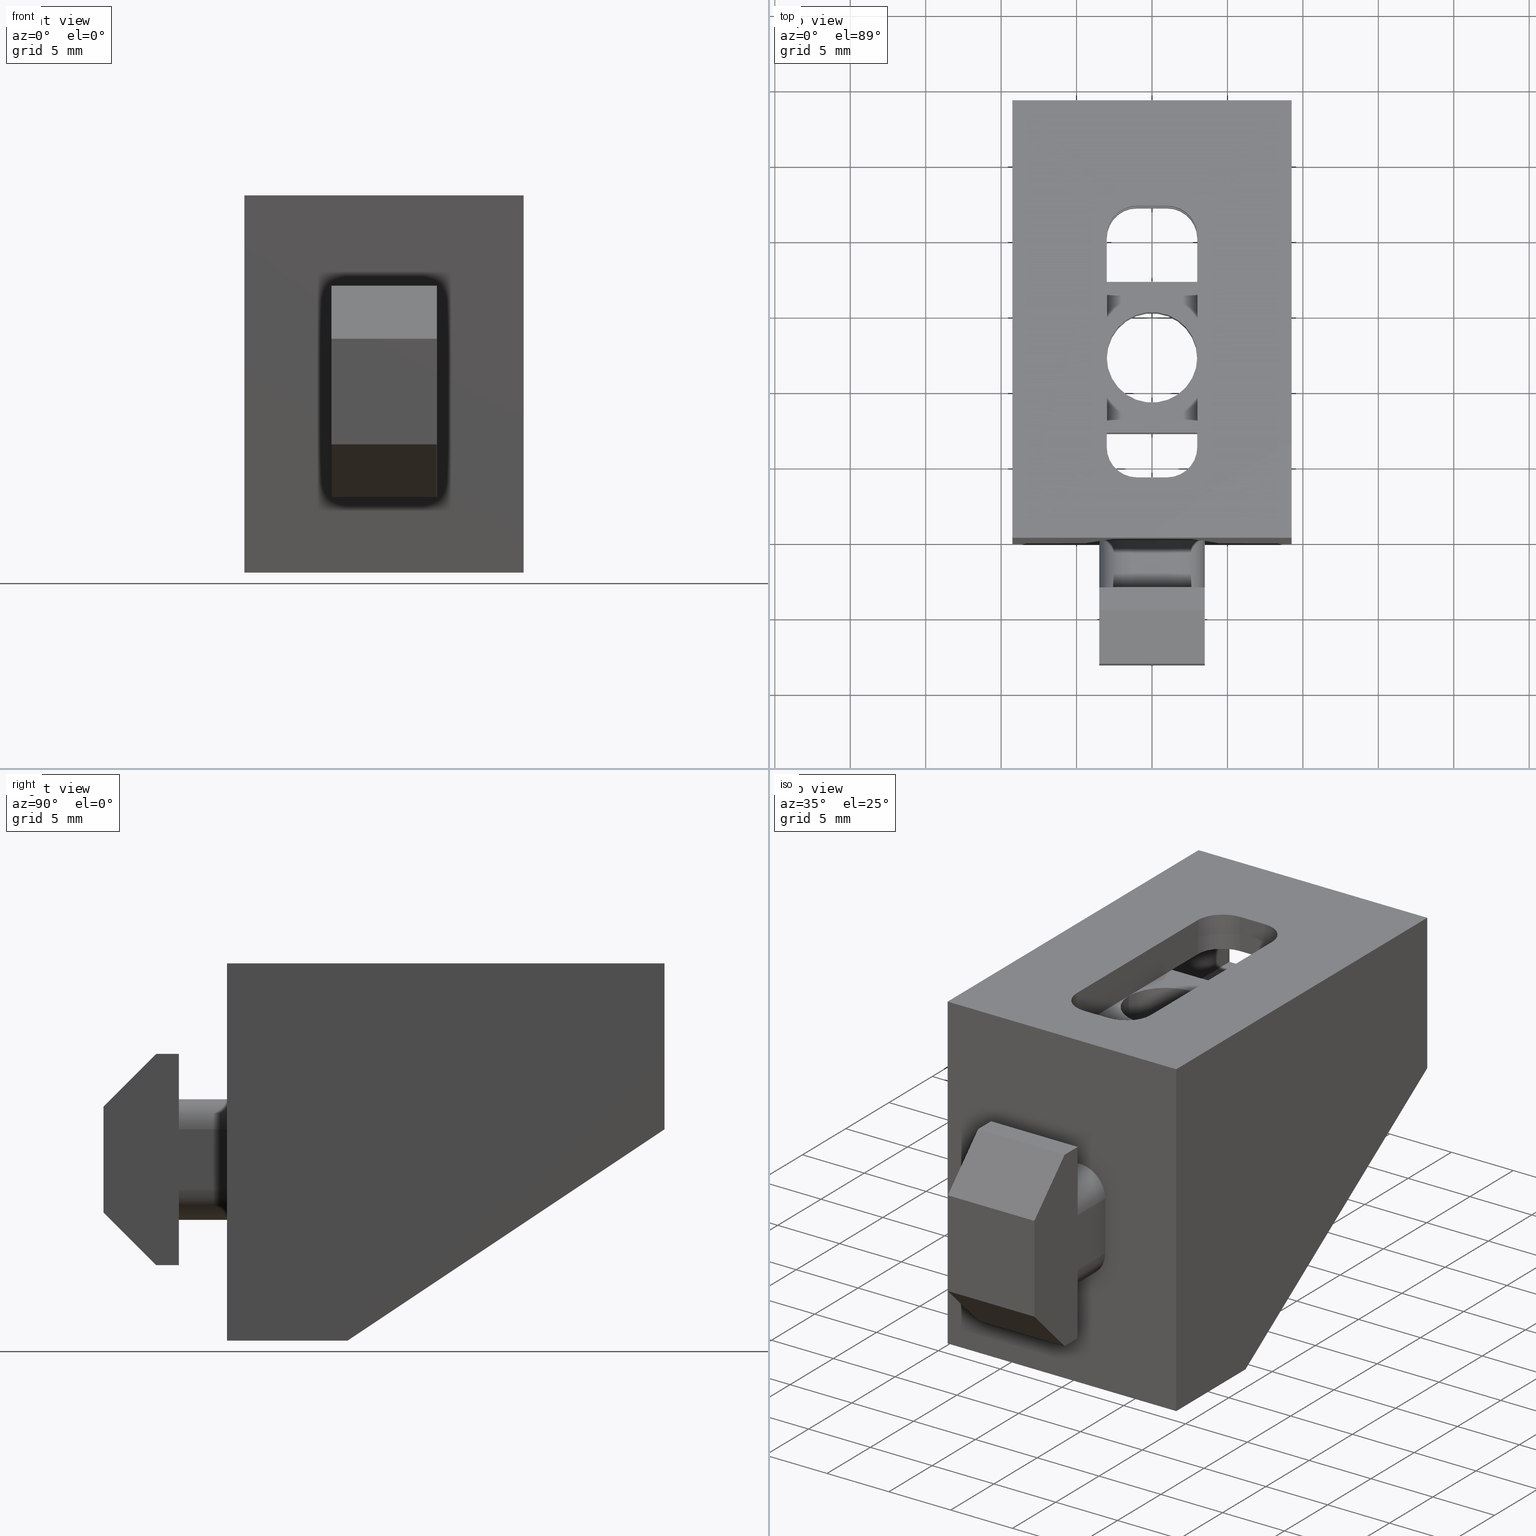
[diagram: canonical four-view strip — front | top / right | iso, engineering-drawing reading convention]
A machine part, canonical four-view strip (front | top / right | iso — engineering-drawing reading convention). The complete STEP part file that produces these views, byte-faithful:
ISO-10303-21;
HEADER;
/* Generated by software containing ST-Developer
 * from STEP Tools, Inc. (www.steptools.com) 
 */

FILE_DESCRIPTION(
/* description */ ('BLOCCHETTO X SERIE 40 1F M6 NERO'),
/* implementation_level */ '2;1');

FILE_NAME(
/* name */ 
'Q:\\Catalogo\\2_Accessori Dierre\\Per Download Web e catalogo cartace
o\\CATALOGO ACCESSORI PER RIPARI\\PAGINA 80\\CBLYY0000009.stp',
/* time_stamp */ '2018-11-29T12:14:58+01:00',
/* author */ ('fzagni'),
/* organization */ (''),
/* preprocessor_version */ 'ST-DEVELOPER v16.1',
/* originating_system */ 'Autodesk Inventor 2016',
/* authorisation */ '');

FILE_SCHEMA (('AUTOMOTIVE_DESIGN { 1 0 10303 214 3 1 1 }'));
ENDSEC;

DATA;
#10=MECHANICAL_DESIGN_GEOMETRIC_PRESENTATION_REPRESENTATION('',(#304,#297,
#302,#298,#303,#299,#301,#300),#1734);
#11=SHAPE_REPRESENTATION_RELATIONSHIP('SRR','None',#1743,#12);
#12=ADVANCED_BREP_SHAPE_REPRESENTATION('',(#13,#14),#1733);
#13=MANIFOLD_SOLID_BREP('None',#1063);
#14=MANIFOLD_SOLID_BREP('None_1',#1064);
#15=LINE('',#1440,#135);
#16=LINE('',#1442,#136);
#17=LINE('',#1444,#137);
#18=LINE('',#1445,#138);
#19=LINE('',#1448,#139);
#20=LINE('',#1450,#140);
#21=LINE('',#1451,#141);
#22=LINE('',#1454,#142);
#23=LINE('',#1456,#143);
#24=LINE('',#1457,#144);
#25=LINE('',#1459,#145);
#26=LINE('',#1460,#146);
#27=LINE('',#1468,#147);
#28=LINE('',#1471,#148);
#29=LINE('',#1474,#149);
#30=LINE('',#1476,#150);
#31=LINE('',#1477,#151);
#32=LINE('',#1480,#152);
#33=LINE('',#1482,#153);
#34=LINE('',#1483,#154);
#35=LINE('',#1488,#155);
#36=LINE('',#1495,#156);
#37=LINE('',#1498,#157);
#38=LINE('',#1500,#158);
#39=LINE('',#1501,#159);
#40=LINE('',#1504,#160);
#41=LINE('',#1506,#161);
#42=LINE('',#1507,#162);
#43=LINE('',#1514,#163);
#44=LINE('',#1516,#164);
#45=LINE('',#1518,#165);
#46=LINE('',#1520,#166);
#47=LINE('',#1521,#167);
#48=LINE('',#1525,#168);
#49=LINE('',#1527,#169);
#50=LINE('',#1529,#170);
#51=LINE('',#1531,#171);
#52=LINE('',#1532,#172);
#53=LINE('',#1534,#173);
#54=LINE('',#1535,#174);
#55=LINE('',#1540,#175);
#56=LINE('',#1544,#176);
#57=LINE('',#1548,#177);
#58=LINE('',#1551,#178);
#59=LINE('',#1555,#179);
#60=LINE('',#1556,#180);
#61=LINE('',#1557,#181);
#62=LINE('',#1559,#182);
#63=LINE('',#1561,#183);
#64=LINE('',#1562,#184);
#65=LINE('',#1566,#185);
#66=LINE('',#1568,#186);
#67=LINE('',#1570,#187);
#68=LINE('',#1571,#188);
#69=LINE('',#1574,#189);
#70=LINE('',#1576,#190);
#71=LINE('',#1578,#191);
#72=LINE('',#1579,#192);
#73=LINE('',#1583,#193);
#74=LINE('',#1585,#194);
#75=LINE('',#1587,#195);
#76=LINE('',#1588,#196);
#77=LINE('',#1591,#197);
#78=LINE('',#1593,#198);
#79=LINE('',#1595,#199);
#80=LINE('',#1596,#200);
#81=LINE('',#1598,#201);
#82=LINE('',#1599,#202);
#83=LINE('',#1604,#203);
#84=LINE('',#1608,#204);
#85=LINE('',#1612,#205);
#86=LINE('',#1615,#206);
#87=LINE('',#1617,#207);
#88=LINE('',#1619,#208);
#89=LINE('',#1621,#209);
#90=LINE('',#1623,#210);
#91=LINE('',#1625,#211);
#92=LINE('',#1626,#212);
#93=LINE('',#1628,#213);
#94=LINE('',#1630,#214);
#95=LINE('',#1632,#215);
#96=LINE('',#1634,#216);
#97=LINE('',#1636,#217);
#98=LINE('',#1638,#218);
#99=LINE('',#1641,#219);
#100=LINE('',#1643,#220);
#101=LINE('',#1648,#221);
#102=LINE('',#1650,#222);
#103=LINE('',#1652,#223);
#104=LINE('',#1653,#224);
#105=LINE('',#1656,#225);
#106=LINE('',#1658,#226);
#107=LINE('',#1659,#227);
#108=LINE('',#1662,#228);
#109=LINE('',#1664,#229);
#110=LINE('',#1665,#230);
#111=LINE('',#1668,#231);
#112=LINE('',#1670,#232);
#113=LINE('',#1671,#233);
#114=LINE('',#1674,#234);
#115=LINE('',#1676,#235);
#116=LINE('',#1677,#236);
#117=LINE('',#1682,#237);
#118=LINE('',#1684,#238);
#119=LINE('',#1687,#239);
#120=LINE('',#1690,#240);
#121=LINE('',#1692,#241);
#122=LINE('',#1698,#242);
#123=LINE('',#1699,#243);
#124=LINE('',#1701,#244);
#125=LINE('',#1707,#245);
#126=LINE('',#1710,#246);
#127=LINE('',#1712,#247);
#128=LINE('',#1713,#248);
#129=LINE('',#1716,#249);
#130=LINE('',#1719,#250);
#131=LINE('',#1722,#251);
#132=LINE('',#1725,#252);
#133=LINE('',#1727,#253);
#134=LINE('',#1729,#254);
#135=VECTOR('',#1157,10.);
#136=VECTOR('',#1158,10.);
#137=VECTOR('',#1159,10.);
#138=VECTOR('',#1160,10.);
#139=VECTOR('',#1163,5.);
#140=VECTOR('',#1164,10.);
#141=VECTOR('',#1165,5.);
#142=VECTOR('',#1168,10.);
#143=VECTOR('',#1169,10.);
#144=VECTOR('',#1170,10.);
#145=VECTOR('',#1173,5.);
#146=VECTOR('',#1174,5.);
#147=VECTOR('',#1183,2.5);
#148=VECTOR('',#1186,2.5);
#149=VECTOR('',#1189,2.00000000000364);
#150=VECTOR('',#1190,2.5);
#151=VECTOR('',#1191,2.00000000000364);
#152=VECTOR('',#1194,13.9999999999995);
#153=VECTOR('',#1195,13.9999999999995);
#154=VECTOR('',#1196,2.5);
#155=VECTOR('',#1201,2.5);
#156=VECTOR('',#1210,2.5);
#157=VECTOR('',#1213,14.);
#158=VECTOR('',#1214,2.5);
#159=VECTOR('',#1215,14.);
#160=VECTOR('',#1218,2.0000000000021);
#161=VECTOR('',#1219,2.0000000000021);
#162=VECTOR('',#1220,2.5);
#163=VECTOR('',#1229,25.);
#164=VECTOR('',#1230,8.00000000000188);
#165=VECTOR('',#1231,25.2388589282464);
#166=VECTOR('',#1232,10.9999999999999);
#167=VECTOR('',#1233,29.);
#168=VECTOR('',#1236,11.);
#169=VECTOR('',#1237,25.2388589282464);
#170=VECTOR('',#1238,8.00000000000188);
#171=VECTOR('',#1239,25.);
#172=VECTOR('',#1240,29.);
#173=VECTOR('',#1243,18.5);
#174=VECTOR('',#1244,18.5);
#175=VECTOR('',#1247,14.);
#176=VECTOR('',#1250,2.00000000000364);
#177=VECTOR('',#1253,13.9999999999995);
#178=VECTOR('',#1256,2.0000000000021);
#179=VECTOR('',#1259,5.50000651895567);
#180=VECTOR('',#1260,2.5);
#181=VECTOR('',#1261,18.5);
#182=VECTOR('',#1262,2.5);
#183=VECTOR('',#1263,5.50000651895567);
#184=VECTOR('',#1264,13.5);
#185=VECTOR('',#1267,5.);
#186=VECTOR('',#1268,26.5000065189538);
#187=VECTOR('',#1269,5.);
#188=VECTOR('',#1270,26.5000065189538);
#189=VECTOR('',#1273,25.2388589282464);
#190=VECTOR('',#1274,15.);
#191=VECTOR('',#1275,26.5000065189538);
#192=VECTOR('',#1276,0.999999999999984);
#193=VECTOR('',#1279,26.5000065189538);
#194=VECTOR('',#1280,5.);
#195=VECTOR('',#1281,26.5000065189538);
#196=VECTOR('',#1282,5.);
#197=VECTOR('',#1285,25.2388589282464);
#198=VECTOR('',#1286,0.999999999999985);
#199=VECTOR('',#1287,26.5000065189538);
#200=VECTOR('',#1288,15.);
#201=VECTOR('',#1291,13.5);
#202=VECTOR('',#1292,13.5);
#203=VECTOR('',#1295,2.0000000000021);
#204=VECTOR('',#1298,13.9999999999995);
#205=VECTOR('',#1301,2.00000000000364);
#206=VECTOR('',#1304,14.);
#207=VECTOR('',#1307,13.5);
#208=VECTOR('',#1310,13.5);
#209=VECTOR('',#1313,2.5);
#210=VECTOR('',#1316,2.5);
#211=VECTOR('',#1319,2.49999999999997);
#212=VECTOR('',#1320,2.49999999999997);
#213=VECTOR('',#1323,2.49999999999997);
#214=VECTOR('',#1326,2.49999999999997);
#215=VECTOR('',#1329,2.49999999999997);
#216=VECTOR('',#1332,2.49999999999997);
#217=VECTOR('',#1335,2.49999999999997);
#218=VECTOR('',#1338,2.49999999999997);
#219=VECTOR('',#1343,13.5);
#220=VECTOR('',#1346,13.5);
#221=VECTOR('',#1351,1.5);
#222=VECTOR('',#1352,7.);
#223=VECTOR('',#1353,1.5);
#224=VECTOR('',#1354,7.);
#225=VECTOR('',#1357,4.94974746830584);
#226=VECTOR('',#1358,7.);
#227=VECTOR('',#1359,4.94974746830584);
#228=VECTOR('',#1362,6.99999999999999);
#229=VECTOR('',#1363,7.);
#230=VECTOR('',#1364,6.99999999999999);
#231=VECTOR('',#1367,4.94974746830584);
#232=VECTOR('',#1368,7.);
#233=VECTOR('',#1369,4.94974746830584);
#234=VECTOR('',#1372,1.5);
#235=VECTOR('',#1373,7.);
#236=VECTOR('',#1374,1.5);
#237=VECTOR('',#1379,5.);
#238=VECTOR('',#1380,5.);
#239=VECTOR('',#1383,3.);
#240=VECTOR('',#1386,3.18627625152038);
#241=VECTOR('',#1387,3.18627625152038);
#242=VECTOR('',#1394,3.18627625152038);
#243=VECTOR('',#1395,3.18627625152038);
#244=VECTOR('',#1398,3.);
#245=VECTOR('',#1403,3.18627625152038);
#246=VECTOR('',#1406,3.18627625152038);
#247=VECTOR('',#1409,4.);
#248=VECTOR('',#1410,5.);
#249=VECTOR('',#1413,3.);
#250=VECTOR('',#1416,5.);
#251=VECTOR('',#1419,3.18627625152038);
#252=VECTOR('',#1422,3.18627625152038);
#253=VECTOR('',#1425,4.);
#254=VECTOR('',#1428,3.);
#255=PLANE('',#1069);
#256=PLANE('',#1070);
#257=PLANE('',#1071);
#258=PLANE('',#1072);
#259=PLANE('',#1073);
#260=PLANE('',#1074);
#261=PLANE('',#1078);
#262=PLANE('',#1079);
#263=PLANE('',#1086);
#264=PLANE('',#1087);
#265=PLANE('',#1091);
#266=PLANE('',#1092);
#267=PLANE('',#1093);
#268=PLANE('',#1098);
#269=PLANE('',#1099);
#270=PLANE('',#1100);
#271=PLANE('',#1101);
#272=PLANE('',#1102);
#273=PLANE('',#1103);
#274=PLANE('',#1108);
#275=PLANE('',#1109);
#276=PLANE('',#1110);
#277=PLANE('',#1111);
#278=PLANE('',#1113);
#279=PLANE('',#1115);
#280=PLANE('',#1117);
#281=PLANE('',#1119);
#282=PLANE('',#1120);
#283=PLANE('',#1121);
#284=PLANE('',#1122);
#285=PLANE('',#1123);
#286=PLANE('',#1124);
#287=PLANE('',#1125);
#288=PLANE('',#1126);
#289=PLANE('',#1127);
#290=PLANE('',#1128);
#291=PLANE('',#1135);
#292=PLANE('',#1139);
#293=PLANE('',#1140);
#294=PLANE('',#1144);
#295=PLANE('',#1145);
#296=PLANE('',#1146);
#297=STYLED_ITEM('',(#1753),#1009);
#298=STYLED_ITEM('',(#1753),#1010);
#299=STYLED_ITEM('',(#1753),#1011);
#300=STYLED_ITEM('',(#1753),#1012);
#301=STYLED_ITEM('',(#1753),#1013);
#302=STYLED_ITEM('',(#1753),#1014);
#303=STYLED_ITEM('',(#1752),#13);
#304=STYLED_ITEM('',(#1752),#14);
#305=FACE_BOUND('',#370,.T.);
#306=FACE_BOUND('',#372,.T.);
#307=FACE_BOUND('',#375,.T.);
#308=FACE_BOUND('',#390,.T.);
#309=FACE_BOUND('',#397,.T.);
#310=FACE_BOUND('',#411,.T.);
#311=FACE_BOUND('',#413,.T.);
#312=FACE_BOUND('',#415,.T.);
#313=FACE_BOUND('',#431,.T.);
#314=FACE_OUTER_BOUND('',#369,.T.);
#315=FACE_OUTER_BOUND('',#371,.T.);
#316=FACE_OUTER_BOUND('',#373,.T.);
#317=FACE_OUTER_BOUND('',#374,.T.);
#318=FACE_OUTER_BOUND('',#376,.T.);
#319=FACE_OUTER_BOUND('',#377,.T.);
#320=FACE_OUTER_BOUND('',#378,.T.);
#321=FACE_OUTER_BOUND('',#379,.T.);
#322=FACE_OUTER_BOUND('',#380,.T.);
#323=FACE_OUTER_BOUND('',#381,.T.);
#324=FACE_OUTER_BOUND('',#382,.T.);
#325=FACE_OUTER_BOUND('',#383,.T.);
#326=FACE_OUTER_BOUND('',#384,.T.);
#327=FACE_OUTER_BOUND('',#385,.T.);
#328=FACE_OUTER_BOUND('',#386,.T.);
#329=FACE_OUTER_BOUND('',#387,.T.);
#330=FACE_OUTER_BOUND('',#388,.T.);
#331=FACE_OUTER_BOUND('',#389,.T.);
#332=FACE_OUTER_BOUND('',#391,.T.);
#333=FACE_OUTER_BOUND('',#392,.T.);
#334=FACE_OUTER_BOUND('',#393,.T.);
#335=FACE_OUTER_BOUND('',#394,.T.);
#336=FACE_OUTER_BOUND('',#395,.T.);
#337=FACE_OUTER_BOUND('',#396,.T.);
#338=FACE_OUTER_BOUND('',#398,.T.);
#339=FACE_OUTER_BOUND('',#399,.T.);
#340=FACE_OUTER_BOUND('',#400,.T.);
#341=FACE_OUTER_BOUND('',#401,.T.);
#342=FACE_OUTER_BOUND('',#402,.T.);
#343=FACE_OUTER_BOUND('',#403,.T.);
#344=FACE_OUTER_BOUND('',#404,.T.);
#345=FACE_OUTER_BOUND('',#405,.T.);
#346=FACE_OUTER_BOUND('',#406,.T.);
#347=FACE_OUTER_BOUND('',#407,.T.);
#348=FACE_OUTER_BOUND('',#408,.T.);
#349=FACE_OUTER_BOUND('',#409,.T.);
#350=FACE_OUTER_BOUND('',#410,.T.);
#351=FACE_OUTER_BOUND('',#412,.T.);
#352=FACE_OUTER_BOUND('',#414,.T.);
#353=FACE_OUTER_BOUND('',#416,.T.);
#354=FACE_OUTER_BOUND('',#417,.T.);
#355=FACE_OUTER_BOUND('',#418,.T.);
#356=FACE_OUTER_BOUND('',#419,.T.);
#357=FACE_OUTER_BOUND('',#420,.T.);
#358=FACE_OUTER_BOUND('',#421,.T.);
#359=FACE_OUTER_BOUND('',#422,.T.);
#360=FACE_OUTER_BOUND('',#423,.T.);
#361=FACE_OUTER_BOUND('',#424,.T.);
#362=FACE_OUTER_BOUND('',#425,.T.);
#363=FACE_OUTER_BOUND('',#426,.T.);
#364=FACE_OUTER_BOUND('',#427,.T.);
#365=FACE_OUTER_BOUND('',#428,.T.);
#366=FACE_OUTER_BOUND('',#429,.T.);
#367=FACE_OUTER_BOUND('',#430,.T.);
#368=FACE_OUTER_BOUND('',#432,.T.);
#369=EDGE_LOOP('',(#703));
#370=EDGE_LOOP('',(#704));
#371=EDGE_LOOP('',(#705,#706,#707,#708));
#372=EDGE_LOOP('',(#709));
#373=EDGE_LOOP('',(#710,#711,#712,#713));
#374=EDGE_LOOP('',(#714,#715,#716,#717));
#375=EDGE_LOOP('',(#718));
#376=EDGE_LOOP('',(#719,#720,#721,#722));
#377=EDGE_LOOP('',(#723,#724,#725,#726));
#378=EDGE_LOOP('',(#727,#728,#729,#730));
#379=EDGE_LOOP('',(#731,#732,#733,#734));
#380=EDGE_LOOP('',(#735,#736,#737,#738));
#381=EDGE_LOOP('',(#739,#740,#741,#742));
#382=EDGE_LOOP('',(#743,#744,#745,#746));
#383=EDGE_LOOP('',(#747,#748,#749,#750));
#384=EDGE_LOOP('',(#751,#752,#753,#754));
#385=EDGE_LOOP('',(#755,#756,#757,#758));
#386=EDGE_LOOP('',(#759,#760,#761,#762));
#387=EDGE_LOOP('',(#763,#764,#765,#766,#767));
#388=EDGE_LOOP('',(#768,#769,#770,#771,#772));
#389=EDGE_LOOP('',(#773,#774,#775,#776));
#390=EDGE_LOOP('',(#777,#778,#779,#780,#781,#782,#783,#784));
#391=EDGE_LOOP('',(#785,#786,#787,#788,#789,#790,#791,#792));
#392=EDGE_LOOP('',(#793,#794,#795,#796));
#393=EDGE_LOOP('',(#797,#798,#799,#800,#801));
#394=EDGE_LOOP('',(#802,#803,#804,#805));
#395=EDGE_LOOP('',(#806,#807,#808,#809,#810));
#396=EDGE_LOOP('',(#811,#812,#813,#814));
#397=EDGE_LOOP('',(#815,#816,#817,#818,#819,#820,#821,#822));
#398=EDGE_LOOP('',(#823,#824,#825,#826));
#399=EDGE_LOOP('',(#827,#828,#829,#830));
#400=EDGE_LOOP('',(#831,#832,#833,#834));
#401=EDGE_LOOP('',(#835,#836,#837,#838));
#402=EDGE_LOOP('',(#839,#840,#841,#842));
#403=EDGE_LOOP('',(#843,#844,#845,#846));
#404=EDGE_LOOP('',(#847,#848,#849,#850));
#405=EDGE_LOOP('',(#851,#852,#853,#854));
#406=EDGE_LOOP('',(#855,#856,#857,#858));
#407=EDGE_LOOP('',(#859,#860,#861,#862));
#408=EDGE_LOOP('',(#863,#864,#865,#866));
#409=EDGE_LOOP('',(#867,#868,#869,#870));
#410=EDGE_LOOP('',(#871,#872,#873,#874));
#411=EDGE_LOOP('',(#875,#876,#877,#878,#879,#880,#881,#882));
#412=EDGE_LOOP('',(#883,#884,#885,#886));
#413=EDGE_LOOP('',(#887,#888,#889,#890,#891,#892,#893,#894));
#414=EDGE_LOOP('',(#895,#896,#897,#898,#899,#900,#901,#902));
#415=EDGE_LOOP('',(#903,#904,#905,#906));
#416=EDGE_LOOP('',(#907,#908,#909,#910));
#417=EDGE_LOOP('',(#911,#912,#913,#914));
#418=EDGE_LOOP('',(#915,#916,#917,#918));
#419=EDGE_LOOP('',(#919,#920,#921,#922));
#420=EDGE_LOOP('',(#923,#924,#925,#926));
#421=EDGE_LOOP('',(#927,#928,#929,#930,#931,#932));
#422=EDGE_LOOP('',(#933,#934,#935,#936));
#423=EDGE_LOOP('',(#937,#938,#939,#940));
#424=EDGE_LOOP('',(#941,#942,#943,#944));
#425=EDGE_LOOP('',(#945,#946,#947,#948));
#426=EDGE_LOOP('',(#949,#950,#951,#952,#953,#954,#955,#956,#957,#958));
#427=EDGE_LOOP('',(#959,#960,#961,#962,#963,#964));
#428=EDGE_LOOP('',(#965,#966,#967,#968));
#429=EDGE_LOOP('',(#969,#970,#971,#972,#973,#974,#975,#976,#977,#978));
#430=EDGE_LOOP('',(#979,#980,#981,#982));
#431=EDGE_LOOP('',(#983,#984,#985,#986,#987,#988,#989,#990));
#432=EDGE_LOOP('',(#991,#992,#993,#994));
#433=CIRCLE('',#1067,3.);
#434=CIRCLE('',#1068,3.);
#435=CIRCLE('',#1076,2.);
#436=CIRCLE('',#1077,2.);
#437=CIRCLE('',#1081,2.);
#438=CIRCLE('',#1082,2.);
#439=CIRCLE('',#1084,2.00000000000155);
#440=CIRCLE('',#1085,2.00000000000155);
#441=CIRCLE('',#1089,2.);
#442=CIRCLE('',#1090,2.);
#443=CIRCLE('',#1094,2.);
#444=CIRCLE('',#1095,2.);
#445=CIRCLE('',#1096,2.);
#446=CIRCLE('',#1097,2.00000000000155);
#447=CIRCLE('',#1104,2.);
#448=CIRCLE('',#1105,2.00000000000155);
#449=CIRCLE('',#1106,2.);
#450=CIRCLE('',#1107,2.);
#451=CIRCLE('',#1129,2.);
#452=CIRCLE('',#1130,2.);
#453=CIRCLE('',#1132,2.);
#454=CIRCLE('',#1134,2.);
#455=CIRCLE('',#1137,2.);
#456=CIRCLE('',#1138,2.);
#457=CIRCLE('',#1141,2.);
#458=CIRCLE('',#1143,2.);
#459=VERTEX_POINT('',#1433);
#460=VERTEX_POINT('',#1435);
#461=VERTEX_POINT('',#1438);
#462=VERTEX_POINT('',#1439);
#463=VERTEX_POINT('',#1441);
#464=VERTEX_POINT('',#1443);
#465=VERTEX_POINT('',#1447);
#466=VERTEX_POINT('',#1449);
#467=VERTEX_POINT('',#1453);
#468=VERTEX_POINT('',#1455);
#469=VERTEX_POINT('',#1464);
#470=VERTEX_POINT('',#1465);
#471=VERTEX_POINT('',#1467);
#472=VERTEX_POINT('',#1469);
#473=VERTEX_POINT('',#1473);
#474=VERTEX_POINT('',#1475);
#475=VERTEX_POINT('',#1479);
#476=VERTEX_POINT('',#1481);
#477=VERTEX_POINT('',#1485);
#478=VERTEX_POINT('',#1487);
#479=VERTEX_POINT('',#1491);
#480=VERTEX_POINT('',#1493);
#481=VERTEX_POINT('',#1497);
#482=VERTEX_POINT('',#1499);
#483=VERTEX_POINT('',#1503);
#484=VERTEX_POINT('',#1505);
#485=VERTEX_POINT('',#1512);
#486=VERTEX_POINT('',#1513);
#487=VERTEX_POINT('',#1515);
#488=VERTEX_POINT('',#1517);
#489=VERTEX_POINT('',#1519);
#490=VERTEX_POINT('',#1523);
#491=VERTEX_POINT('',#1524);
#492=VERTEX_POINT('',#1526);
#493=VERTEX_POINT('',#1528);
#494=VERTEX_POINT('',#1530);
#495=VERTEX_POINT('',#1536);
#496=VERTEX_POINT('',#1537);
#497=VERTEX_POINT('',#1539);
#498=VERTEX_POINT('',#1541);
#499=VERTEX_POINT('',#1543);
#500=VERTEX_POINT('',#1545);
#501=VERTEX_POINT('',#1547);
#502=VERTEX_POINT('',#1549);
#503=VERTEX_POINT('',#1553);
#504=VERTEX_POINT('',#1554);
#505=VERTEX_POINT('',#1558);
#506=VERTEX_POINT('',#1560);
#507=VERTEX_POINT('',#1564);
#508=VERTEX_POINT('',#1565);
#509=VERTEX_POINT('',#1567);
#510=VERTEX_POINT('',#1569);
#511=VERTEX_POINT('',#1573);
#512=VERTEX_POINT('',#1575);
#513=VERTEX_POINT('',#1577);
#514=VERTEX_POINT('',#1581);
#515=VERTEX_POINT('',#1582);
#516=VERTEX_POINT('',#1584);
#517=VERTEX_POINT('',#1586);
#518=VERTEX_POINT('',#1590);
#519=VERTEX_POINT('',#1592);
#520=VERTEX_POINT('',#1594);
#521=VERTEX_POINT('',#1600);
#522=VERTEX_POINT('',#1601);
#523=VERTEX_POINT('',#1603);
#524=VERTEX_POINT('',#1605);
#525=VERTEX_POINT('',#1607);
#526=VERTEX_POINT('',#1609);
#527=VERTEX_POINT('',#1611);
#528=VERTEX_POINT('',#1613);
#529=VERTEX_POINT('',#1646);
#530=VERTEX_POINT('',#1647);
#531=VERTEX_POINT('',#1649);
#532=VERTEX_POINT('',#1651);
#533=VERTEX_POINT('',#1655);
#534=VERTEX_POINT('',#1657);
#535=VERTEX_POINT('',#1661);
#536=VERTEX_POINT('',#1663);
#537=VERTEX_POINT('',#1667);
#538=VERTEX_POINT('',#1669);
#539=VERTEX_POINT('',#1673);
#540=VERTEX_POINT('',#1675);
#541=VERTEX_POINT('',#1679);
#542=VERTEX_POINT('',#1680);
#543=VERTEX_POINT('',#1683);
#544=VERTEX_POINT('',#1685);
#545=VERTEX_POINT('',#1689);
#546=VERTEX_POINT('',#1691);
#547=VERTEX_POINT('',#1695);
#548=VERTEX_POINT('',#1696);
#549=VERTEX_POINT('',#1703);
#550=VERTEX_POINT('',#1704);
#551=VERTEX_POINT('',#1706);
#552=VERTEX_POINT('',#1708);
#553=VERTEX_POINT('',#1715);
#554=VERTEX_POINT('',#1717);
#555=VERTEX_POINT('',#1721);
#556=VERTEX_POINT('',#1723);
#557=EDGE_CURVE('',#459,#459,#433,.T.);
#558=EDGE_CURVE('',#460,#460,#434,.T.);
#559=EDGE_CURVE('',#461,#462,#15,.T.);
#560=EDGE_CURVE('',#462,#463,#16,.T.);
#561=EDGE_CURVE('',#464,#463,#17,.T.);
#562=EDGE_CURVE('',#461,#464,#18,.T.);
#563=EDGE_CURVE('',#463,#465,#19,.T.);
#564=EDGE_CURVE('',#466,#465,#20,.T.);
#565=EDGE_CURVE('',#464,#466,#21,.T.);
#566=EDGE_CURVE('',#465,#467,#22,.T.);
#567=EDGE_CURVE('',#468,#467,#23,.T.);
#568=EDGE_CURVE('',#466,#468,#24,.T.);
#569=EDGE_CURVE('',#467,#462,#25,.T.);
#570=EDGE_CURVE('',#468,#461,#26,.T.);
#571=EDGE_CURVE('',#469,#470,#435,.T.);
#572=EDGE_CURVE('',#471,#469,#27,.T.);
#573=EDGE_CURVE('',#472,#471,#436,.T.);
#574=EDGE_CURVE('',#472,#470,#28,.T.);
#575=EDGE_CURVE('',#473,#469,#29,.T.);
#576=EDGE_CURVE('',#474,#473,#30,.T.);
#577=EDGE_CURVE('',#471,#474,#31,.T.);
#578=EDGE_CURVE('',#470,#475,#32,.T.);
#579=EDGE_CURVE('',#476,#472,#33,.T.);
#580=EDGE_CURVE('',#476,#475,#34,.T.);
#581=EDGE_CURVE('',#477,#473,#437,.T.);
#582=EDGE_CURVE('',#478,#477,#35,.T.);
#583=EDGE_CURVE('',#474,#478,#438,.T.);
#584=EDGE_CURVE('',#475,#479,#439,.T.);
#585=EDGE_CURVE('',#480,#476,#440,.T.);
#586=EDGE_CURVE('',#480,#479,#36,.T.);
#587=EDGE_CURVE('',#481,#477,#37,.T.);
#588=EDGE_CURVE('',#482,#481,#38,.T.);
#589=EDGE_CURVE('',#478,#482,#39,.T.);
#590=EDGE_CURVE('',#479,#483,#40,.T.);
#591=EDGE_CURVE('',#484,#480,#41,.T.);
#592=EDGE_CURVE('',#484,#483,#42,.T.);
#593=EDGE_CURVE('',#483,#481,#441,.T.);
#594=EDGE_CURVE('',#482,#484,#442,.T.);
#595=EDGE_CURVE('',#485,#486,#43,.T.);
#596=EDGE_CURVE('',#486,#487,#44,.T.);
#597=EDGE_CURVE('',#488,#487,#45,.T.);
#598=EDGE_CURVE('',#489,#488,#46,.T.);
#599=EDGE_CURVE('',#485,#489,#47,.T.);
#600=EDGE_CURVE('',#490,#491,#48,.T.);
#601=EDGE_CURVE('',#491,#492,#49,.T.);
#602=EDGE_CURVE('',#492,#493,#50,.T.);
#603=EDGE_CURVE('',#494,#493,#51,.T.);
#604=EDGE_CURVE('',#490,#494,#52,.T.);
#605=EDGE_CURVE('',#489,#490,#53,.T.);
#606=EDGE_CURVE('',#494,#485,#54,.T.);
#607=EDGE_CURVE('',#495,#496,#443,.T.);
#608=EDGE_CURVE('',#497,#495,#55,.T.);
#609=EDGE_CURVE('',#498,#497,#444,.T.);
#610=EDGE_CURVE('',#499,#498,#56,.T.);
#611=EDGE_CURVE('',#500,#499,#445,.T.);
#612=EDGE_CURVE('',#501,#500,#57,.T.);
#613=EDGE_CURVE('',#502,#501,#446,.T.);
#614=EDGE_CURVE('',#496,#502,#58,.T.);
#615=EDGE_CURVE('',#503,#504,#59,.T.);
#616=EDGE_CURVE('',#487,#503,#60,.T.);
#617=EDGE_CURVE('',#493,#486,#61,.T.);
#618=EDGE_CURVE('',#505,#492,#62,.T.);
#619=EDGE_CURVE('',#505,#506,#63,.T.);
#620=EDGE_CURVE('',#504,#506,#64,.T.);
#621=EDGE_CURVE('',#507,#508,#65,.T.);
#622=EDGE_CURVE('',#508,#509,#66,.T.);
#623=EDGE_CURVE('',#510,#509,#67,.T.);
#624=EDGE_CURVE('',#507,#510,#68,.T.);
#625=EDGE_CURVE('',#511,#503,#69,.T.);
#626=EDGE_CURVE('',#512,#504,#70,.T.);
#627=EDGE_CURVE('',#513,#512,#71,.T.);
#628=EDGE_CURVE('',#513,#511,#72,.T.);
#629=EDGE_CURVE('',#514,#515,#73,.T.);
#630=EDGE_CURVE('',#516,#515,#74,.T.);
#631=EDGE_CURVE('',#517,#516,#75,.T.);
#632=EDGE_CURVE('',#517,#514,#76,.T.);
#633=EDGE_CURVE('',#518,#505,#77,.T.);
#634=EDGE_CURVE('',#518,#519,#78,.T.);
#635=EDGE_CURVE('',#519,#520,#79,.T.);
#636=EDGE_CURVE('',#506,#520,#80,.T.);
#637=EDGE_CURVE('',#515,#510,#81,.T.);
#638=EDGE_CURVE('',#514,#507,#82,.T.);
#639=EDGE_CURVE('',#521,#522,#447,.T.);
#640=EDGE_CURVE('',#522,#523,#83,.T.);
#641=EDGE_CURVE('',#523,#524,#448,.T.);
#642=EDGE_CURVE('',#524,#525,#84,.T.);
#643=EDGE_CURVE('',#525,#526,#449,.T.);
#644=EDGE_CURVE('',#526,#527,#85,.T.);
#645=EDGE_CURVE('',#527,#528,#450,.T.);
#646=EDGE_CURVE('',#521,#528,#86,.T.);
#647=EDGE_CURVE('',#512,#520,#87,.T.);
#648=EDGE_CURVE('',#509,#516,#88,.T.);
#649=EDGE_CURVE('',#488,#511,#89,.T.);
#650=EDGE_CURVE('',#518,#491,#90,.T.);
#651=EDGE_CURVE('',#496,#522,#91,.T.);
#652=EDGE_CURVE('',#495,#521,#92,.T.);
#653=EDGE_CURVE('',#502,#523,#93,.T.);
#654=EDGE_CURVE('',#501,#524,#94,.T.);
#655=EDGE_CURVE('',#500,#525,#95,.T.);
#656=EDGE_CURVE('',#499,#526,#96,.T.);
#657=EDGE_CURVE('',#498,#527,#97,.T.);
#658=EDGE_CURVE('',#497,#528,#98,.T.);
#659=EDGE_CURVE('',#517,#508,#99,.T.);
#660=EDGE_CURVE('',#513,#519,#100,.T.);
#661=EDGE_CURVE('',#529,#530,#101,.T.);
#662=EDGE_CURVE('',#530,#531,#102,.T.);
#663=EDGE_CURVE('',#532,#531,#103,.T.);
#664=EDGE_CURVE('',#529,#532,#104,.T.);
#665=EDGE_CURVE('',#530,#533,#105,.T.);
#666=EDGE_CURVE('',#533,#534,#106,.T.);
#667=EDGE_CURVE('',#531,#534,#107,.T.);
#668=EDGE_CURVE('',#533,#535,#108,.T.);
#669=EDGE_CURVE('',#535,#536,#109,.T.);
#670=EDGE_CURVE('',#534,#536,#110,.T.);
#671=EDGE_CURVE('',#535,#537,#111,.T.);
#672=EDGE_CURVE('',#537,#538,#112,.T.);
#673=EDGE_CURVE('',#536,#538,#113,.T.);
#674=EDGE_CURVE('',#537,#539,#114,.T.);
#675=EDGE_CURVE('',#539,#540,#115,.T.);
#676=EDGE_CURVE('',#538,#540,#116,.T.);
#677=EDGE_CURVE('',#541,#542,#451,.T.);
#678=EDGE_CURVE('',#529,#541,#117,.T.);
#679=EDGE_CURVE('',#532,#543,#118,.T.);
#680=EDGE_CURVE('',#543,#544,#452,.T.);
#681=EDGE_CURVE('',#542,#544,#119,.T.);
#682=EDGE_CURVE('',#545,#541,#120,.T.);
#683=EDGE_CURVE('',#546,#542,#121,.T.);
#684=EDGE_CURVE('',#545,#546,#453,.T.);
#685=EDGE_CURVE('',#547,#548,#454,.T.);
#686=EDGE_CURVE('',#548,#544,#122,.T.);
#687=EDGE_CURVE('',#547,#543,#123,.T.);
#688=EDGE_CURVE('',#546,#548,#124,.T.);
#689=EDGE_CURVE('',#549,#550,#455,.T.);
#690=EDGE_CURVE('',#550,#551,#125,.T.);
#691=EDGE_CURVE('',#552,#551,#456,.T.);
#692=EDGE_CURVE('',#549,#552,#126,.T.);
#693=EDGE_CURVE('',#551,#545,#127,.T.);
#694=EDGE_CURVE('',#539,#550,#128,.T.);
#695=EDGE_CURVE('',#549,#553,#129,.T.);
#696=EDGE_CURVE('',#554,#553,#457,.T.);
#697=EDGE_CURVE('',#540,#554,#130,.T.);
#698=EDGE_CURVE('',#553,#555,#131,.T.);
#699=EDGE_CURVE('',#556,#555,#458,.T.);
#700=EDGE_CURVE('',#554,#556,#132,.T.);
#701=EDGE_CURVE('',#556,#547,#133,.T.);
#702=EDGE_CURVE('',#552,#555,#134,.T.);
#703=ORIENTED_EDGE('',*,*,#557,.F.);
#704=ORIENTED_EDGE('',*,*,#558,.F.);
#705=ORIENTED_EDGE('',*,*,#559,.T.);
#706=ORIENTED_EDGE('',*,*,#560,.T.);
#707=ORIENTED_EDGE('',*,*,#561,.F.);
#708=ORIENTED_EDGE('',*,*,#562,.F.);
#709=ORIENTED_EDGE('',*,*,#557,.T.);
#710=ORIENTED_EDGE('',*,*,#561,.T.);
#711=ORIENTED_EDGE('',*,*,#563,.T.);
#712=ORIENTED_EDGE('',*,*,#564,.F.);
#713=ORIENTED_EDGE('',*,*,#565,.F.);
#714=ORIENTED_EDGE('',*,*,#564,.T.);
#715=ORIENTED_EDGE('',*,*,#566,.T.);
#716=ORIENTED_EDGE('',*,*,#567,.F.);
#717=ORIENTED_EDGE('',*,*,#568,.F.);
#718=ORIENTED_EDGE('',*,*,#558,.T.);
#719=ORIENTED_EDGE('',*,*,#567,.T.);
#720=ORIENTED_EDGE('',*,*,#569,.T.);
#721=ORIENTED_EDGE('',*,*,#559,.F.);
#722=ORIENTED_EDGE('',*,*,#570,.F.);
#723=ORIENTED_EDGE('',*,*,#562,.T.);
#724=ORIENTED_EDGE('',*,*,#565,.T.);
#725=ORIENTED_EDGE('',*,*,#568,.T.);
#726=ORIENTED_EDGE('',*,*,#570,.T.);
#727=ORIENTED_EDGE('',*,*,#569,.F.);
#728=ORIENTED_EDGE('',*,*,#566,.F.);
#729=ORIENTED_EDGE('',*,*,#563,.F.);
#730=ORIENTED_EDGE('',*,*,#560,.F.);
#731=ORIENTED_EDGE('',*,*,#571,.F.);
#732=ORIENTED_EDGE('',*,*,#572,.F.);
#733=ORIENTED_EDGE('',*,*,#573,.F.);
#734=ORIENTED_EDGE('',*,*,#574,.T.);
#735=ORIENTED_EDGE('',*,*,#575,.F.);
#736=ORIENTED_EDGE('',*,*,#576,.F.);
#737=ORIENTED_EDGE('',*,*,#577,.F.);
#738=ORIENTED_EDGE('',*,*,#572,.T.);
#739=ORIENTED_EDGE('',*,*,#578,.F.);
#740=ORIENTED_EDGE('',*,*,#574,.F.);
#741=ORIENTED_EDGE('',*,*,#579,.F.);
#742=ORIENTED_EDGE('',*,*,#580,.T.);
#743=ORIENTED_EDGE('',*,*,#581,.F.);
#744=ORIENTED_EDGE('',*,*,#582,.F.);
#745=ORIENTED_EDGE('',*,*,#583,.F.);
#746=ORIENTED_EDGE('',*,*,#576,.T.);
#747=ORIENTED_EDGE('',*,*,#584,.F.);
#748=ORIENTED_EDGE('',*,*,#580,.F.);
#749=ORIENTED_EDGE('',*,*,#585,.F.);
#750=ORIENTED_EDGE('',*,*,#586,.T.);
#751=ORIENTED_EDGE('',*,*,#587,.F.);
#752=ORIENTED_EDGE('',*,*,#588,.F.);
#753=ORIENTED_EDGE('',*,*,#589,.F.);
#754=ORIENTED_EDGE('',*,*,#582,.T.);
#755=ORIENTED_EDGE('',*,*,#590,.F.);
#756=ORIENTED_EDGE('',*,*,#586,.F.);
#757=ORIENTED_EDGE('',*,*,#591,.F.);
#758=ORIENTED_EDGE('',*,*,#592,.T.);
#759=ORIENTED_EDGE('',*,*,#593,.F.);
#760=ORIENTED_EDGE('',*,*,#592,.F.);
#761=ORIENTED_EDGE('',*,*,#594,.F.);
#762=ORIENTED_EDGE('',*,*,#588,.T.);
#763=ORIENTED_EDGE('',*,*,#595,.T.);
#764=ORIENTED_EDGE('',*,*,#596,.T.);
#765=ORIENTED_EDGE('',*,*,#597,.F.);
#766=ORIENTED_EDGE('',*,*,#598,.F.);
#767=ORIENTED_EDGE('',*,*,#599,.F.);
#768=ORIENTED_EDGE('',*,*,#600,.T.);
#769=ORIENTED_EDGE('',*,*,#601,.T.);
#770=ORIENTED_EDGE('',*,*,#602,.T.);
#771=ORIENTED_EDGE('',*,*,#603,.F.);
#772=ORIENTED_EDGE('',*,*,#604,.F.);
#773=ORIENTED_EDGE('',*,*,#599,.T.);
#774=ORIENTED_EDGE('',*,*,#605,.T.);
#775=ORIENTED_EDGE('',*,*,#604,.T.);
#776=ORIENTED_EDGE('',*,*,#606,.T.);
#777=ORIENTED_EDGE('',*,*,#607,.F.);
#778=ORIENTED_EDGE('',*,*,#608,.F.);
#779=ORIENTED_EDGE('',*,*,#609,.F.);
#780=ORIENTED_EDGE('',*,*,#610,.F.);
#781=ORIENTED_EDGE('',*,*,#611,.F.);
#782=ORIENTED_EDGE('',*,*,#612,.F.);
#783=ORIENTED_EDGE('',*,*,#613,.F.);
#784=ORIENTED_EDGE('',*,*,#614,.F.);
#785=ORIENTED_EDGE('',*,*,#615,.F.);
#786=ORIENTED_EDGE('',*,*,#616,.F.);
#787=ORIENTED_EDGE('',*,*,#596,.F.);
#788=ORIENTED_EDGE('',*,*,#617,.F.);
#789=ORIENTED_EDGE('',*,*,#602,.F.);
#790=ORIENTED_EDGE('',*,*,#618,.F.);
#791=ORIENTED_EDGE('',*,*,#619,.T.);
#792=ORIENTED_EDGE('',*,*,#620,.F.);
#793=ORIENTED_EDGE('',*,*,#621,.T.);
#794=ORIENTED_EDGE('',*,*,#622,.T.);
#795=ORIENTED_EDGE('',*,*,#623,.F.);
#796=ORIENTED_EDGE('',*,*,#624,.F.);
#797=ORIENTED_EDGE('',*,*,#625,.T.);
#798=ORIENTED_EDGE('',*,*,#615,.T.);
#799=ORIENTED_EDGE('',*,*,#626,.F.);
#800=ORIENTED_EDGE('',*,*,#627,.F.);
#801=ORIENTED_EDGE('',*,*,#628,.T.);
#802=ORIENTED_EDGE('',*,*,#629,.T.);
#803=ORIENTED_EDGE('',*,*,#630,.F.);
#804=ORIENTED_EDGE('',*,*,#631,.F.);
#805=ORIENTED_EDGE('',*,*,#632,.T.);
#806=ORIENTED_EDGE('',*,*,#633,.F.);
#807=ORIENTED_EDGE('',*,*,#634,.T.);
#808=ORIENTED_EDGE('',*,*,#635,.T.);
#809=ORIENTED_EDGE('',*,*,#636,.F.);
#810=ORIENTED_EDGE('',*,*,#619,.F.);
#811=ORIENTED_EDGE('',*,*,#637,.F.);
#812=ORIENTED_EDGE('',*,*,#629,.F.);
#813=ORIENTED_EDGE('',*,*,#638,.T.);
#814=ORIENTED_EDGE('',*,*,#624,.T.);
#815=ORIENTED_EDGE('',*,*,#639,.T.);
#816=ORIENTED_EDGE('',*,*,#640,.T.);
#817=ORIENTED_EDGE('',*,*,#641,.T.);
#818=ORIENTED_EDGE('',*,*,#642,.T.);
#819=ORIENTED_EDGE('',*,*,#643,.T.);
#820=ORIENTED_EDGE('',*,*,#644,.T.);
#821=ORIENTED_EDGE('',*,*,#645,.T.);
#822=ORIENTED_EDGE('',*,*,#646,.F.);
#823=ORIENTED_EDGE('',*,*,#620,.T.);
#824=ORIENTED_EDGE('',*,*,#636,.T.);
#825=ORIENTED_EDGE('',*,*,#647,.F.);
#826=ORIENTED_EDGE('',*,*,#626,.T.);
#827=ORIENTED_EDGE('',*,*,#623,.T.);
#828=ORIENTED_EDGE('',*,*,#648,.T.);
#829=ORIENTED_EDGE('',*,*,#630,.T.);
#830=ORIENTED_EDGE('',*,*,#637,.T.);
#831=ORIENTED_EDGE('',*,*,#597,.T.);
#832=ORIENTED_EDGE('',*,*,#616,.T.);
#833=ORIENTED_EDGE('',*,*,#625,.F.);
#834=ORIENTED_EDGE('',*,*,#649,.F.);
#835=ORIENTED_EDGE('',*,*,#633,.T.);
#836=ORIENTED_EDGE('',*,*,#618,.T.);
#837=ORIENTED_EDGE('',*,*,#601,.F.);
#838=ORIENTED_EDGE('',*,*,#650,.F.);
#839=ORIENTED_EDGE('',*,*,#651,.T.);
#840=ORIENTED_EDGE('',*,*,#639,.F.);
#841=ORIENTED_EDGE('',*,*,#652,.F.);
#842=ORIENTED_EDGE('',*,*,#607,.T.);
#843=ORIENTED_EDGE('',*,*,#614,.T.);
#844=ORIENTED_EDGE('',*,*,#653,.T.);
#845=ORIENTED_EDGE('',*,*,#640,.F.);
#846=ORIENTED_EDGE('',*,*,#651,.F.);
#847=ORIENTED_EDGE('',*,*,#613,.T.);
#848=ORIENTED_EDGE('',*,*,#654,.T.);
#849=ORIENTED_EDGE('',*,*,#641,.F.);
#850=ORIENTED_EDGE('',*,*,#653,.F.);
#851=ORIENTED_EDGE('',*,*,#612,.T.);
#852=ORIENTED_EDGE('',*,*,#655,.T.);
#853=ORIENTED_EDGE('',*,*,#642,.F.);
#854=ORIENTED_EDGE('',*,*,#654,.F.);
#855=ORIENTED_EDGE('',*,*,#611,.T.);
#856=ORIENTED_EDGE('',*,*,#656,.T.);
#857=ORIENTED_EDGE('',*,*,#643,.F.);
#858=ORIENTED_EDGE('',*,*,#655,.F.);
#859=ORIENTED_EDGE('',*,*,#610,.T.);
#860=ORIENTED_EDGE('',*,*,#657,.T.);
#861=ORIENTED_EDGE('',*,*,#644,.F.);
#862=ORIENTED_EDGE('',*,*,#656,.F.);
#863=ORIENTED_EDGE('',*,*,#609,.T.);
#864=ORIENTED_EDGE('',*,*,#658,.T.);
#865=ORIENTED_EDGE('',*,*,#645,.F.);
#866=ORIENTED_EDGE('',*,*,#657,.F.);
#867=ORIENTED_EDGE('',*,*,#652,.T.);
#868=ORIENTED_EDGE('',*,*,#646,.T.);
#869=ORIENTED_EDGE('',*,*,#658,.F.);
#870=ORIENTED_EDGE('',*,*,#608,.T.);
#871=ORIENTED_EDGE('',*,*,#631,.T.);
#872=ORIENTED_EDGE('',*,*,#648,.F.);
#873=ORIENTED_EDGE('',*,*,#622,.F.);
#874=ORIENTED_EDGE('',*,*,#659,.F.);
#875=ORIENTED_EDGE('',*,*,#593,.T.);
#876=ORIENTED_EDGE('',*,*,#587,.T.);
#877=ORIENTED_EDGE('',*,*,#581,.T.);
#878=ORIENTED_EDGE('',*,*,#575,.T.);
#879=ORIENTED_EDGE('',*,*,#571,.T.);
#880=ORIENTED_EDGE('',*,*,#578,.T.);
#881=ORIENTED_EDGE('',*,*,#584,.T.);
#882=ORIENTED_EDGE('',*,*,#590,.T.);
#883=ORIENTED_EDGE('',*,*,#660,.F.);
#884=ORIENTED_EDGE('',*,*,#627,.T.);
#885=ORIENTED_EDGE('',*,*,#647,.T.);
#886=ORIENTED_EDGE('',*,*,#635,.F.);
#887=ORIENTED_EDGE('',*,*,#594,.T.);
#888=ORIENTED_EDGE('',*,*,#591,.T.);
#889=ORIENTED_EDGE('',*,*,#585,.T.);
#890=ORIENTED_EDGE('',*,*,#579,.T.);
#891=ORIENTED_EDGE('',*,*,#573,.T.);
#892=ORIENTED_EDGE('',*,*,#577,.T.);
#893=ORIENTED_EDGE('',*,*,#583,.T.);
#894=ORIENTED_EDGE('',*,*,#589,.T.);
#895=ORIENTED_EDGE('',*,*,#598,.T.);
#896=ORIENTED_EDGE('',*,*,#649,.T.);
#897=ORIENTED_EDGE('',*,*,#628,.F.);
#898=ORIENTED_EDGE('',*,*,#660,.T.);
#899=ORIENTED_EDGE('',*,*,#634,.F.);
#900=ORIENTED_EDGE('',*,*,#650,.T.);
#901=ORIENTED_EDGE('',*,*,#600,.F.);
#902=ORIENTED_EDGE('',*,*,#605,.F.);
#903=ORIENTED_EDGE('',*,*,#659,.T.);
#904=ORIENTED_EDGE('',*,*,#621,.F.);
#905=ORIENTED_EDGE('',*,*,#638,.F.);
#906=ORIENTED_EDGE('',*,*,#632,.F.);
#907=ORIENTED_EDGE('',*,*,#661,.T.);
#908=ORIENTED_EDGE('',*,*,#662,.T.);
#909=ORIENTED_EDGE('',*,*,#663,.F.);
#910=ORIENTED_EDGE('',*,*,#664,.F.);
#911=ORIENTED_EDGE('',*,*,#665,.T.);
#912=ORIENTED_EDGE('',*,*,#666,.T.);
#913=ORIENTED_EDGE('',*,*,#667,.F.);
#914=ORIENTED_EDGE('',*,*,#662,.F.);
#915=ORIENTED_EDGE('',*,*,#668,.T.);
#916=ORIENTED_EDGE('',*,*,#669,.T.);
#917=ORIENTED_EDGE('',*,*,#670,.F.);
#918=ORIENTED_EDGE('',*,*,#666,.F.);
#919=ORIENTED_EDGE('',*,*,#671,.T.);
#920=ORIENTED_EDGE('',*,*,#672,.T.);
#921=ORIENTED_EDGE('',*,*,#673,.F.);
#922=ORIENTED_EDGE('',*,*,#669,.F.);
#923=ORIENTED_EDGE('',*,*,#674,.T.);
#924=ORIENTED_EDGE('',*,*,#675,.T.);
#925=ORIENTED_EDGE('',*,*,#676,.F.);
#926=ORIENTED_EDGE('',*,*,#672,.F.);
#927=ORIENTED_EDGE('',*,*,#677,.F.);
#928=ORIENTED_EDGE('',*,*,#678,.F.);
#929=ORIENTED_EDGE('',*,*,#664,.T.);
#930=ORIENTED_EDGE('',*,*,#679,.T.);
#931=ORIENTED_EDGE('',*,*,#680,.T.);
#932=ORIENTED_EDGE('',*,*,#681,.F.);
#933=ORIENTED_EDGE('',*,*,#682,.T.);
#934=ORIENTED_EDGE('',*,*,#677,.T.);
#935=ORIENTED_EDGE('',*,*,#683,.F.);
#936=ORIENTED_EDGE('',*,*,#684,.F.);
#937=ORIENTED_EDGE('',*,*,#685,.T.);
#938=ORIENTED_EDGE('',*,*,#686,.T.);
#939=ORIENTED_EDGE('',*,*,#680,.F.);
#940=ORIENTED_EDGE('',*,*,#687,.F.);
#941=ORIENTED_EDGE('',*,*,#688,.F.);
#942=ORIENTED_EDGE('',*,*,#683,.T.);
#943=ORIENTED_EDGE('',*,*,#681,.T.);
#944=ORIENTED_EDGE('',*,*,#686,.F.);
#945=ORIENTED_EDGE('',*,*,#689,.T.);
#946=ORIENTED_EDGE('',*,*,#690,.T.);
#947=ORIENTED_EDGE('',*,*,#691,.F.);
#948=ORIENTED_EDGE('',*,*,#692,.F.);
#949=ORIENTED_EDGE('',*,*,#678,.T.);
#950=ORIENTED_EDGE('',*,*,#682,.F.);
#951=ORIENTED_EDGE('',*,*,#693,.F.);
#952=ORIENTED_EDGE('',*,*,#690,.F.);
#953=ORIENTED_EDGE('',*,*,#694,.F.);
#954=ORIENTED_EDGE('',*,*,#674,.F.);
#955=ORIENTED_EDGE('',*,*,#671,.F.);
#956=ORIENTED_EDGE('',*,*,#668,.F.);
#957=ORIENTED_EDGE('',*,*,#665,.F.);
#958=ORIENTED_EDGE('',*,*,#661,.F.);
#959=ORIENTED_EDGE('',*,*,#695,.T.);
#960=ORIENTED_EDGE('',*,*,#696,.F.);
#961=ORIENTED_EDGE('',*,*,#697,.F.);
#962=ORIENTED_EDGE('',*,*,#675,.F.);
#963=ORIENTED_EDGE('',*,*,#694,.T.);
#964=ORIENTED_EDGE('',*,*,#689,.F.);
#965=ORIENTED_EDGE('',*,*,#696,.T.);
#966=ORIENTED_EDGE('',*,*,#698,.T.);
#967=ORIENTED_EDGE('',*,*,#699,.F.);
#968=ORIENTED_EDGE('',*,*,#700,.F.);
#969=ORIENTED_EDGE('',*,*,#663,.T.);
#970=ORIENTED_EDGE('',*,*,#667,.T.);
#971=ORIENTED_EDGE('',*,*,#670,.T.);
#972=ORIENTED_EDGE('',*,*,#673,.T.);
#973=ORIENTED_EDGE('',*,*,#676,.T.);
#974=ORIENTED_EDGE('',*,*,#697,.T.);
#975=ORIENTED_EDGE('',*,*,#700,.T.);
#976=ORIENTED_EDGE('',*,*,#701,.T.);
#977=ORIENTED_EDGE('',*,*,#687,.T.);
#978=ORIENTED_EDGE('',*,*,#679,.F.);
#979=ORIENTED_EDGE('',*,*,#606,.F.);
#980=ORIENTED_EDGE('',*,*,#603,.T.);
#981=ORIENTED_EDGE('',*,*,#617,.T.);
#982=ORIENTED_EDGE('',*,*,#595,.F.);
#983=ORIENTED_EDGE('',*,*,#701,.F.);
#984=ORIENTED_EDGE('',*,*,#699,.T.);
#985=ORIENTED_EDGE('',*,*,#702,.F.);
#986=ORIENTED_EDGE('',*,*,#691,.T.);
#987=ORIENTED_EDGE('',*,*,#693,.T.);
#988=ORIENTED_EDGE('',*,*,#684,.T.);
#989=ORIENTED_EDGE('',*,*,#688,.T.);
#990=ORIENTED_EDGE('',*,*,#685,.F.);
#991=ORIENTED_EDGE('',*,*,#692,.T.);
#992=ORIENTED_EDGE('',*,*,#702,.T.);
#993=ORIENTED_EDGE('',*,*,#698,.F.);
#994=ORIENTED_EDGE('',*,*,#695,.F.);
#995=CYLINDRICAL_SURFACE('',#1066,3.);
#996=CYLINDRICAL_SURFACE('',#1075,2.);
#997=CYLINDRICAL_SURFACE('',#1080,2.);
#998=CYLINDRICAL_SURFACE('',#1083,2.00000000000155);
#999=CYLINDRICAL_SURFACE('',#1088,2.);
#1000=CYLINDRICAL_SURFACE('',#1112,2.);
#1001=CYLINDRICAL_SURFACE('',#1114,2.00000000000155);
#1002=CYLINDRICAL_SURFACE('',#1116,2.);
#1003=CYLINDRICAL_SURFACE('',#1118,2.);
#1004=CYLINDRICAL_SURFACE('',#1131,2.);
#1005=CYLINDRICAL_SURFACE('',#1133,2.);
#1006=CYLINDRICAL_SURFACE('',#1136,2.);
#1007=CYLINDRICAL_SURFACE('',#1142,2.);
#1008=ADVANCED_FACE('',(#314,#305),#995,.F.);
#1009=ADVANCED_FACE('',(#315,#306),#255,.F.);
#1010=ADVANCED_FACE('',(#316),#256,.F.);
#1011=ADVANCED_FACE('',(#317,#307),#257,.F.);
#1012=ADVANCED_FACE('',(#318),#258,.F.);
#1013=ADVANCED_FACE('',(#319),#259,.T.);
#1014=ADVANCED_FACE('',(#320),#260,.F.);
#1015=ADVANCED_FACE('',(#321),#996,.F.);
#1016=ADVANCED_FACE('',(#322),#261,.F.);
#1017=ADVANCED_FACE('',(#323),#262,.F.);
#1018=ADVANCED_FACE('',(#324),#997,.F.);
#1019=ADVANCED_FACE('',(#325),#998,.F.);
#1020=ADVANCED_FACE('',(#326),#263,.F.);
#1021=ADVANCED_FACE('',(#327),#264,.F.);
#1022=ADVANCED_FACE('',(#328),#999,.F.);
#1023=ADVANCED_FACE('',(#329),#265,.F.);
#1024=ADVANCED_FACE('',(#330),#266,.F.);
#1025=ADVANCED_FACE('',(#331,#308),#267,.T.);
#1026=ADVANCED_FACE('',(#332),#268,.F.);
#1027=ADVANCED_FACE('',(#333),#269,.T.);
#1028=ADVANCED_FACE('',(#334),#270,.T.);
#1029=ADVANCED_FACE('',(#335),#271,.T.);
#1030=ADVANCED_FACE('',(#336),#272,.T.);
#1031=ADVANCED_FACE('',(#337,#309),#273,.T.);
#1032=ADVANCED_FACE('',(#338),#274,.T.);
#1033=ADVANCED_FACE('',(#339),#275,.T.);
#1034=ADVANCED_FACE('',(#340),#276,.T.);
#1035=ADVANCED_FACE('',(#341),#277,.T.);
#1036=ADVANCED_FACE('',(#342),#1000,.F.);
#1037=ADVANCED_FACE('',(#343),#278,.T.);
#1038=ADVANCED_FACE('',(#344),#1001,.F.);
#1039=ADVANCED_FACE('',(#345),#279,.T.);
#1040=ADVANCED_FACE('',(#346),#1002,.F.);
#1041=ADVANCED_FACE('',(#347),#280,.T.);
#1042=ADVANCED_FACE('',(#348),#1003,.F.);
#1043=ADVANCED_FACE('',(#349),#281,.T.);
#1044=ADVANCED_FACE('',(#350,#310),#282,.F.);
#1045=ADVANCED_FACE('',(#351,#311),#283,.F.);
#1046=ADVANCED_FACE('',(#352,#312),#284,.F.);
#1047=ADVANCED_FACE('',(#353),#285,.T.);
#1048=ADVANCED_FACE('',(#354),#286,.T.);
#1049=ADVANCED_FACE('',(#355),#287,.T.);
#1050=ADVANCED_FACE('',(#356),#288,.T.);
#1051=ADVANCED_FACE('',(#357),#289,.T.);
#1052=ADVANCED_FACE('',(#358),#290,.T.);
#1053=ADVANCED_FACE('',(#359),#1004,.T.);
#1054=ADVANCED_FACE('',(#360),#1005,.T.);
#1055=ADVANCED_FACE('',(#361),#291,.T.);
#1056=ADVANCED_FACE('',(#362),#1006,.T.);
#1057=ADVANCED_FACE('',(#363),#292,.F.);
#1058=ADVANCED_FACE('',(#364),#293,.T.);
#1059=ADVANCED_FACE('',(#365),#1007,.T.);
#1060=ADVANCED_FACE('',(#366),#294,.T.);
#1061=ADVANCED_FACE('',(#367,#313),#295,.F.);
#1062=ADVANCED_FACE('',(#368),#296,.T.);
#1063=CLOSED_SHELL('',(#1008,#1009,#1010,#1011,#1012,#1013,#1014));
#1064=CLOSED_SHELL('',(#1015,#1016,#1017,#1018,#1019,#1020,#1021,#1022,
#1023,#1024,#1025,#1026,#1027,#1028,#1029,#1030,#1031,#1032,#1033,#1034,
#1035,#1036,#1037,#1038,#1039,#1040,#1041,#1042,#1043,#1044,#1045,#1046,
#1047,#1048,#1049,#1050,#1051,#1052,#1053,#1054,#1055,#1056,#1057,#1058,
#1059,#1060,#1061,#1062));
#1065=AXIS2_PLACEMENT_3D('placement',#1431,#1147,#1148);
#1066=AXIS2_PLACEMENT_3D('',#1432,#1149,#1150);
#1067=AXIS2_PLACEMENT_3D('',#1434,#1151,#1152);
#1068=AXIS2_PLACEMENT_3D('',#1436,#1153,#1154);
#1069=AXIS2_PLACEMENT_3D('',#1437,#1155,#1156);
#1070=AXIS2_PLACEMENT_3D('',#1446,#1161,#1162);
#1071=AXIS2_PLACEMENT_3D('',#1452,#1166,#1167);
#1072=AXIS2_PLACEMENT_3D('',#1458,#1171,#1172);
#1073=AXIS2_PLACEMENT_3D('',#1461,#1175,#1176);
#1074=AXIS2_PLACEMENT_3D('',#1462,#1177,#1178);
#1075=AXIS2_PLACEMENT_3D('',#1463,#1179,#1180);
#1076=AXIS2_PLACEMENT_3D('',#1466,#1181,#1182);
#1077=AXIS2_PLACEMENT_3D('',#1470,#1184,#1185);
#1078=AXIS2_PLACEMENT_3D('',#1472,#1187,#1188);
#1079=AXIS2_PLACEMENT_3D('',#1478,#1192,#1193);
#1080=AXIS2_PLACEMENT_3D('',#1484,#1197,#1198);
#1081=AXIS2_PLACEMENT_3D('',#1486,#1199,#1200);
#1082=AXIS2_PLACEMENT_3D('',#1489,#1202,#1203);
#1083=AXIS2_PLACEMENT_3D('',#1490,#1204,#1205);
#1084=AXIS2_PLACEMENT_3D('',#1492,#1206,#1207);
#1085=AXIS2_PLACEMENT_3D('',#1494,#1208,#1209);
#1086=AXIS2_PLACEMENT_3D('',#1496,#1211,#1212);
#1087=AXIS2_PLACEMENT_3D('',#1502,#1216,#1217);
#1088=AXIS2_PLACEMENT_3D('',#1508,#1221,#1222);
#1089=AXIS2_PLACEMENT_3D('',#1509,#1223,#1224);
#1090=AXIS2_PLACEMENT_3D('',#1510,#1225,#1226);
#1091=AXIS2_PLACEMENT_3D('',#1511,#1227,#1228);
#1092=AXIS2_PLACEMENT_3D('',#1522,#1234,#1235);
#1093=AXIS2_PLACEMENT_3D('',#1533,#1241,#1242);
#1094=AXIS2_PLACEMENT_3D('',#1538,#1245,#1246);
#1095=AXIS2_PLACEMENT_3D('',#1542,#1248,#1249);
#1096=AXIS2_PLACEMENT_3D('',#1546,#1251,#1252);
#1097=AXIS2_PLACEMENT_3D('',#1550,#1254,#1255);
#1098=AXIS2_PLACEMENT_3D('',#1552,#1257,#1258);
#1099=AXIS2_PLACEMENT_3D('',#1563,#1265,#1266);
#1100=AXIS2_PLACEMENT_3D('',#1572,#1271,#1272);
#1101=AXIS2_PLACEMENT_3D('',#1580,#1277,#1278);
#1102=AXIS2_PLACEMENT_3D('',#1589,#1283,#1284);
#1103=AXIS2_PLACEMENT_3D('',#1597,#1289,#1290);
#1104=AXIS2_PLACEMENT_3D('',#1602,#1293,#1294);
#1105=AXIS2_PLACEMENT_3D('',#1606,#1296,#1297);
#1106=AXIS2_PLACEMENT_3D('',#1610,#1299,#1300);
#1107=AXIS2_PLACEMENT_3D('',#1614,#1302,#1303);
#1108=AXIS2_PLACEMENT_3D('',#1616,#1305,#1306);
#1109=AXIS2_PLACEMENT_3D('',#1618,#1308,#1309);
#1110=AXIS2_PLACEMENT_3D('',#1620,#1311,#1312);
#1111=AXIS2_PLACEMENT_3D('',#1622,#1314,#1315);
#1112=AXIS2_PLACEMENT_3D('',#1624,#1317,#1318);
#1113=AXIS2_PLACEMENT_3D('',#1627,#1321,#1322);
#1114=AXIS2_PLACEMENT_3D('',#1629,#1324,#1325);
#1115=AXIS2_PLACEMENT_3D('',#1631,#1327,#1328);
#1116=AXIS2_PLACEMENT_3D('',#1633,#1330,#1331);
#1117=AXIS2_PLACEMENT_3D('',#1635,#1333,#1334);
#1118=AXIS2_PLACEMENT_3D('',#1637,#1336,#1337);
#1119=AXIS2_PLACEMENT_3D('',#1639,#1339,#1340);
#1120=AXIS2_PLACEMENT_3D('',#1640,#1341,#1342);
#1121=AXIS2_PLACEMENT_3D('',#1642,#1344,#1345);
#1122=AXIS2_PLACEMENT_3D('',#1644,#1347,#1348);
#1123=AXIS2_PLACEMENT_3D('',#1645,#1349,#1350);
#1124=AXIS2_PLACEMENT_3D('',#1654,#1355,#1356);
#1125=AXIS2_PLACEMENT_3D('',#1660,#1360,#1361);
#1126=AXIS2_PLACEMENT_3D('',#1666,#1365,#1366);
#1127=AXIS2_PLACEMENT_3D('',#1672,#1370,#1371);
#1128=AXIS2_PLACEMENT_3D('',#1678,#1375,#1376);
#1129=AXIS2_PLACEMENT_3D('',#1681,#1377,#1378);
#1130=AXIS2_PLACEMENT_3D('',#1686,#1381,#1382);
#1131=AXIS2_PLACEMENT_3D('',#1688,#1384,#1385);
#1132=AXIS2_PLACEMENT_3D('',#1693,#1388,#1389);
#1133=AXIS2_PLACEMENT_3D('',#1694,#1390,#1391);
#1134=AXIS2_PLACEMENT_3D('',#1697,#1392,#1393);
#1135=AXIS2_PLACEMENT_3D('',#1700,#1396,#1397);
#1136=AXIS2_PLACEMENT_3D('',#1702,#1399,#1400);
#1137=AXIS2_PLACEMENT_3D('',#1705,#1401,#1402);
#1138=AXIS2_PLACEMENT_3D('',#1709,#1404,#1405);
#1139=AXIS2_PLACEMENT_3D('',#1711,#1407,#1408);
#1140=AXIS2_PLACEMENT_3D('',#1714,#1411,#1412);
#1141=AXIS2_PLACEMENT_3D('',#1718,#1414,#1415);
#1142=AXIS2_PLACEMENT_3D('',#1720,#1417,#1418);
#1143=AXIS2_PLACEMENT_3D('',#1724,#1420,#1421);
#1144=AXIS2_PLACEMENT_3D('',#1726,#1423,#1424);
#1145=AXIS2_PLACEMENT_3D('',#1728,#1426,#1427);
#1146=AXIS2_PLACEMENT_3D('',#1730,#1429,#1430);
#1147=DIRECTION('axis',(0.,0.,1.));
#1148=DIRECTION('refdir',(1.,0.,0.));
#1149=DIRECTION('center_axis',(0.,0.,-1.));
#1150=DIRECTION('ref_axis',(-1.,0.,0.));
#1151=DIRECTION('center_axis',(0.,0.,-1.));
#1152=DIRECTION('ref_axis',(-1.,0.,0.));
#1153=DIRECTION('center_axis',(0.,0.,1.));
#1154=DIRECTION('ref_axis',(-1.,0.,0.));
#1155=DIRECTION('center_axis',(0.,0.,-1.));
#1156=DIRECTION('ref_axis',(-1.,0.,0.));
#1157=DIRECTION('',(0.,-1.,0.));
#1158=DIRECTION('',(1.,0.,0.));
#1159=DIRECTION('',(0.,-1.,0.));
#1160=DIRECTION('',(1.,0.,0.));
#1161=DIRECTION('center_axis',(-1.,0.,0.));
#1162=DIRECTION('ref_axis',(0.,0.,1.));
#1163=DIRECTION('',(0.,0.,-1.));
#1164=DIRECTION('',(0.,-1.,0.));
#1165=DIRECTION('',(0.,0.,-1.));
#1166=DIRECTION('center_axis',(0.,0.,1.));
#1167=DIRECTION('ref_axis',(1.,0.,0.));
#1168=DIRECTION('',(-1.,0.,0.));
#1169=DIRECTION('',(0.,-1.,0.));
#1170=DIRECTION('',(-1.,0.,0.));
#1171=DIRECTION('center_axis',(1.,0.,0.));
#1172=DIRECTION('ref_axis',(0.,0.,-1.));
#1173=DIRECTION('',(0.,0.,1.));
#1174=DIRECTION('',(0.,0.,1.));
#1175=DIRECTION('center_axis',(0.,1.,0.));
#1176=DIRECTION('ref_axis',(0.,0.,1.));
#1177=DIRECTION('center_axis',(0.,1.,0.));
#1178=DIRECTION('ref_axis',(0.,0.,1.));
#1179=DIRECTION('center_axis',(0.,0.,1.));
#1180=DIRECTION('ref_axis',(0.,-1.,0.));
#1181=DIRECTION('center_axis',(0.,0.,-1.));
#1182=DIRECTION('ref_axis',(0.,-1.,0.));
#1183=DIRECTION('',(0.,0.,1.));
#1184=DIRECTION('center_axis',(0.,0.,1.));
#1185=DIRECTION('ref_axis',(0.,-1.,0.));
#1186=DIRECTION('',(0.,0.,1.));
#1187=DIRECTION('center_axis',(0.,1.,0.));
#1188=DIRECTION('ref_axis',(-1.,0.,0.));
#1189=DIRECTION('',(1.,0.,0.));
#1190=DIRECTION('',(0.,0.,1.));
#1191=DIRECTION('',(-1.,0.,0.));
#1192=DIRECTION('center_axis',(1.,0.,0.));
#1193=DIRECTION('ref_axis',(0.,1.,0.));
#1194=DIRECTION('',(0.,-1.,0.));
#1195=DIRECTION('',(0.,1.,0.));
#1196=DIRECTION('',(0.,0.,1.));
#1197=DIRECTION('center_axis',(0.,0.,1.));
#1198=DIRECTION('ref_axis',(1.,0.,0.));
#1199=DIRECTION('center_axis',(0.,0.,-1.));
#1200=DIRECTION('ref_axis',(1.,0.,0.));
#1201=DIRECTION('',(0.,0.,1.));
#1202=DIRECTION('center_axis',(0.,0.,1.));
#1203=DIRECTION('ref_axis',(1.,0.,0.));
#1204=DIRECTION('center_axis',(0.,0.,1.));
#1205=DIRECTION('ref_axis',(-1.,5.1070259132718E-13,0.));
#1206=DIRECTION('center_axis',(0.,0.,-1.));
#1207=DIRECTION('ref_axis',(-1.,5.1070259132718E-13,0.));
#1208=DIRECTION('center_axis',(0.,0.,1.));
#1209=DIRECTION('ref_axis',(-1.,5.1070259132718E-13,0.));
#1210=DIRECTION('',(0.,0.,1.));
#1211=DIRECTION('center_axis',(-1.,0.,0.));
#1212=DIRECTION('ref_axis',(0.,-1.,0.));
#1213=DIRECTION('',(0.,1.,0.));
#1214=DIRECTION('',(0.,0.,1.));
#1215=DIRECTION('',(0.,-1.,0.));
#1216=DIRECTION('center_axis',(0.,-1.,0.));
#1217=DIRECTION('ref_axis',(1.,0.,0.));
#1218=DIRECTION('',(-1.,0.,0.));
#1219=DIRECTION('',(1.,0.,0.));
#1220=DIRECTION('',(0.,0.,1.));
#1221=DIRECTION('center_axis',(0.,0.,1.));
#1222=DIRECTION('ref_axis',(0.,1.,0.));
#1223=DIRECTION('center_axis',(0.,0.,-1.));
#1224=DIRECTION('ref_axis',(0.,1.,0.));
#1225=DIRECTION('center_axis',(0.,0.,1.));
#1226=DIRECTION('ref_axis',(0.,1.,0.));
#1227=DIRECTION('center_axis',(-1.,0.,0.));
#1228=DIRECTION('ref_axis',(0.,0.,1.));
#1229=DIRECTION('',(0.,0.,-1.));
#1230=DIRECTION('',(0.,1.,0.));
#1231=DIRECTION('',(0.,-0.83205029433782,-0.554700196225265));
#1232=DIRECTION('',(0.,0.,-1.));
#1233=DIRECTION('',(0.,1.,0.));
#1234=DIRECTION('center_axis',(1.,0.,0.));
#1235=DIRECTION('ref_axis',(0.,0.,-1.));
#1236=DIRECTION('',(0.,0.,-1.));
#1237=DIRECTION('',(0.,-0.83205029433782,-0.554700196225265));
#1238=DIRECTION('',(0.,-1.,0.));
#1239=DIRECTION('',(0.,0.,-1.));
#1240=DIRECTION('',(0.,-1.,0.));
#1241=DIRECTION('center_axis',(0.,0.,1.));
#1242=DIRECTION('ref_axis',(1.,0.,0.));
#1243=DIRECTION('',(-1.,0.,0.));
#1244=DIRECTION('',(1.,0.,0.));
#1245=DIRECTION('center_axis',(0.,0.,1.));
#1246=DIRECTION('ref_axis',(1.,0.,0.));
#1247=DIRECTION('',(0.,-1.,0.));
#1248=DIRECTION('center_axis',(0.,0.,1.));
#1249=DIRECTION('ref_axis',(1.,0.,0.));
#1250=DIRECTION('',(-1.,0.,0.));
#1251=DIRECTION('center_axis',(0.,0.,1.));
#1252=DIRECTION('ref_axis',(1.,0.,0.));
#1253=DIRECTION('',(0.,1.,0.));
#1254=DIRECTION('center_axis',(0.,0.,1.));
#1255=DIRECTION('ref_axis',(1.,0.,0.));
#1256=DIRECTION('',(1.,0.,0.));
#1257=DIRECTION('center_axis',(0.,0.,1.));
#1258=DIRECTION('ref_axis',(1.,0.,0.));
#1259=DIRECTION('',(0.,-1.,0.));
#1260=DIRECTION('',(-1.,0.,0.));
#1261=DIRECTION('',(1.,0.,0.));
#1262=DIRECTION('',(-1.,0.,0.));
#1263=DIRECTION('',(0.,-1.,0.));
#1264=DIRECTION('',(-1.,0.,0.));
#1265=DIRECTION('center_axis',(-1.,0.,0.));
#1266=DIRECTION('ref_axis',(0.,0.,1.));
#1267=DIRECTION('',(0.,0.,-1.));
#1268=DIRECTION('',(0.,-1.,0.));
#1269=DIRECTION('',(0.,0.,-1.));
#1270=DIRECTION('',(0.,-1.,0.));
#1271=DIRECTION('center_axis',(-1.,0.,0.));
#1272=DIRECTION('ref_axis',(0.,0.,1.));
#1273=DIRECTION('',(0.,-0.83205029433782,-0.554700196225265));
#1274=DIRECTION('',(0.,0.,-1.));
#1275=DIRECTION('',(0.,-1.,0.));
#1276=DIRECTION('',(0.,0.,-1.));
#1277=DIRECTION('center_axis',(1.,0.,0.));
#1278=DIRECTION('ref_axis',(0.,0.,-1.));
#1279=DIRECTION('',(0.,-1.,0.));
#1280=DIRECTION('',(0.,0.,1.));
#1281=DIRECTION('',(0.,-1.,0.));
#1282=DIRECTION('',(0.,0.,1.));
#1283=DIRECTION('center_axis',(1.,0.,0.));
#1284=DIRECTION('ref_axis',(0.,0.,-1.));
#1285=DIRECTION('',(0.,-0.83205029433782,-0.554700196225265));
#1286=DIRECTION('',(0.,0.,1.));
#1287=DIRECTION('',(0.,-1.,0.));
#1288=DIRECTION('',(0.,0.,1.));
#1289=DIRECTION('center_axis',(0.,0.,-1.));
#1290=DIRECTION('ref_axis',(-1.,0.,0.));
#1291=DIRECTION('',(1.,0.,0.));
#1292=DIRECTION('',(1.,0.,0.));
#1293=DIRECTION('center_axis',(0.,0.,1.));
#1294=DIRECTION('ref_axis',(1.,0.,0.));
#1295=DIRECTION('',(1.,0.,0.));
#1296=DIRECTION('center_axis',(0.,0.,1.));
#1297=DIRECTION('ref_axis',(1.,0.,0.));
#1298=DIRECTION('',(0.,1.,0.));
#1299=DIRECTION('center_axis',(0.,0.,1.));
#1300=DIRECTION('ref_axis',(1.,0.,0.));
#1301=DIRECTION('',(-1.,0.,0.));
#1302=DIRECTION('center_axis',(0.,0.,1.));
#1303=DIRECTION('ref_axis',(1.,0.,0.));
#1304=DIRECTION('',(0.,1.,0.));
#1305=DIRECTION('center_axis',(0.,1.,0.));
#1306=DIRECTION('ref_axis',(0.,0.,1.));
#1307=DIRECTION('',(-1.,0.,0.));
#1308=DIRECTION('center_axis',(0.,1.,0.));
#1309=DIRECTION('ref_axis',(0.,0.,1.));
#1310=DIRECTION('',(-1.,0.,0.));
#1311=DIRECTION('center_axis',(0.,0.554700196225265,-0.83205029433782));
#1312=DIRECTION('ref_axis',(-1.,0.,0.));
#1313=DIRECTION('',(-1.,0.,0.));
#1314=DIRECTION('center_axis',(0.,0.554700196225265,-0.83205029433782));
#1315=DIRECTION('ref_axis',(-1.,0.,0.));
#1316=DIRECTION('',(-1.,0.,0.));
#1317=DIRECTION('center_axis',(0.,0.,1.));
#1318=DIRECTION('ref_axis',(1.,0.,0.));
#1319=DIRECTION('',(0.,0.,-1.));
#1320=DIRECTION('',(0.,0.,-1.));
#1321=DIRECTION('center_axis',(0.,1.,0.));
#1322=DIRECTION('ref_axis',(0.,0.,1.));
#1323=DIRECTION('',(0.,0.,-1.));
#1324=DIRECTION('center_axis',(0.,0.,1.));
#1325=DIRECTION('ref_axis',(0.,-1.,0.));
#1326=DIRECTION('',(0.,0.,-1.));
#1327=DIRECTION('center_axis',(-1.,0.,0.));
#1328=DIRECTION('ref_axis',(0.,0.,1.));
#1329=DIRECTION('',(0.,0.,-1.));
#1330=DIRECTION('center_axis',(0.,0.,1.));
#1331=DIRECTION('ref_axis',(1.,0.,0.));
#1332=DIRECTION('',(0.,0.,-1.));
#1333=DIRECTION('center_axis',(0.,-1.,0.));
#1334=DIRECTION('ref_axis',(0.,0.,-1.));
#1335=DIRECTION('',(0.,0.,-1.));
#1336=DIRECTION('center_axis',(0.,0.,1.));
#1337=DIRECTION('ref_axis',(1.,0.,0.));
#1338=DIRECTION('',(0.,0.,-1.));
#1339=DIRECTION('center_axis',(1.,0.,0.));
#1340=DIRECTION('ref_axis',(0.,0.,-1.));
#1341=DIRECTION('center_axis',(0.,0.,-1.));
#1342=DIRECTION('ref_axis',(-1.,0.,0.));
#1343=DIRECTION('',(1.,0.,0.));
#1344=DIRECTION('center_axis',(0.,0.,1.));
#1345=DIRECTION('ref_axis',(1.,0.,0.));
#1346=DIRECTION('',(-1.,0.,0.));
#1347=DIRECTION('center_axis',(0.,-1.,0.));
#1348=DIRECTION('ref_axis',(0.,0.,-1.));
#1349=DIRECTION('center_axis',(0.,0.,-1.));
#1350=DIRECTION('ref_axis',(-1.,0.,0.));
#1351=DIRECTION('',(0.,-1.,0.));
#1352=DIRECTION('',(-1.,0.,0.));
#1353=DIRECTION('',(0.,-1.,0.));
#1354=DIRECTION('',(-1.,0.,0.));
#1355=DIRECTION('center_axis',(0.,-0.707106781186548,-0.707106781186547));
#1356=DIRECTION('ref_axis',(-1.,0.,0.));
#1357=DIRECTION('',(0.,-0.707106781186547,0.707106781186548));
#1358=DIRECTION('',(-1.,0.,0.));
#1359=DIRECTION('',(0.,-0.707106781186547,0.707106781186548));
#1360=DIRECTION('center_axis',(0.,-1.,0.));
#1361=DIRECTION('ref_axis',(0.,0.,-1.));
#1362=DIRECTION('',(0.,0.,1.));
#1363=DIRECTION('',(-1.,0.,0.));
#1364=DIRECTION('',(0.,0.,1.));
#1365=DIRECTION('center_axis',(0.,-0.707106781186547,0.707106781186548));
#1366=DIRECTION('ref_axis',(1.,0.,0.));
#1367=DIRECTION('',(0.,0.707106781186548,0.707106781186547));
#1368=DIRECTION('',(-1.,0.,0.));
#1369=DIRECTION('',(0.,0.707106781186548,0.707106781186547));
#1370=DIRECTION('center_axis',(0.,0.,1.));
#1371=DIRECTION('ref_axis',(1.,0.,0.));
#1372=DIRECTION('',(0.,1.,0.));
#1373=DIRECTION('',(-1.,0.,0.));
#1374=DIRECTION('',(0.,1.,0.));
#1375=DIRECTION('center_axis',(0.,1.,0.));
#1376=DIRECTION('ref_axis',(0.,0.,1.));
#1377=DIRECTION('center_axis',(0.,1.,0.));
#1378=DIRECTION('ref_axis',(1.,0.,0.));
#1379=DIRECTION('',(0.,0.,1.));
#1380=DIRECTION('',(0.,0.,1.));
#1381=DIRECTION('center_axis',(0.,-1.,0.));
#1382=DIRECTION('ref_axis',(-1.,0.,0.));
#1383=DIRECTION('',(-1.,0.,0.));
#1384=DIRECTION('center_axis',(0.,1.,0.));
#1385=DIRECTION('ref_axis',(1.,0.,0.));
#1386=DIRECTION('',(0.,-1.,0.));
#1387=DIRECTION('',(0.,-1.,0.));
#1388=DIRECTION('center_axis',(0.,1.,0.));
#1389=DIRECTION('ref_axis',(1.,0.,0.));
#1390=DIRECTION('center_axis',(0.,-1.,0.));
#1391=DIRECTION('ref_axis',(-1.,0.,0.));
#1392=DIRECTION('center_axis',(0.,-1.,0.));
#1393=DIRECTION('ref_axis',(-1.,0.,0.));
#1394=DIRECTION('',(0.,-1.,0.));
#1395=DIRECTION('',(0.,-1.,0.));
#1396=DIRECTION('center_axis',(0.,0.,-1.));
#1397=DIRECTION('ref_axis',(-1.,0.,0.));
#1398=DIRECTION('',(-1.,0.,0.));
#1399=DIRECTION('center_axis',(0.,1.,0.));
#1400=DIRECTION('ref_axis',(0.,0.,1.));
#1401=DIRECTION('center_axis',(0.,1.,0.));
#1402=DIRECTION('ref_axis',(0.,0.,1.));
#1403=DIRECTION('',(0.,1.,0.));
#1404=DIRECTION('center_axis',(0.,1.,0.));
#1405=DIRECTION('ref_axis',(0.,0.,1.));
#1406=DIRECTION('',(0.,1.,0.));
#1407=DIRECTION('center_axis',(-1.,0.,0.));
#1408=DIRECTION('ref_axis',(0.,0.,1.));
#1409=DIRECTION('',(0.,0.,-1.));
#1410=DIRECTION('',(0.,0.,-1.));
#1411=DIRECTION('center_axis',(0.,1.,0.));
#1412=DIRECTION('ref_axis',(0.,0.,1.));
#1413=DIRECTION('',(-1.,0.,0.));
#1414=DIRECTION('center_axis',(0.,1.,0.));
#1415=DIRECTION('ref_axis',(-1.,0.,0.));
#1416=DIRECTION('',(0.,0.,-1.));
#1417=DIRECTION('center_axis',(0.,1.,0.));
#1418=DIRECTION('ref_axis',(-1.,0.,0.));
#1419=DIRECTION('',(0.,1.,0.));
#1420=DIRECTION('center_axis',(0.,1.,0.));
#1421=DIRECTION('ref_axis',(-1.,0.,0.));
#1422=DIRECTION('',(0.,1.,0.));
#1423=DIRECTION('center_axis',(-1.,0.,0.));
#1424=DIRECTION('ref_axis',(0.,0.,1.));
#1425=DIRECTION('',(0.,0.,-1.));
#1426=DIRECTION('center_axis',(0.,1.,0.));
#1427=DIRECTION('ref_axis',(0.,0.,1.));
#1428=DIRECTION('',(-1.,0.,0.));
#1429=DIRECTION('center_axis',(0.,0.,1.));
#1430=DIRECTION('ref_axis',(1.,0.,0.));
#1431=CARTESIAN_POINT('',(0.,0.,0.));
#1432=CARTESIAN_POINT('Origin',(0.,12.,16.5));
#1433=CARTESIAN_POINT('',(3.,12.,6.50000000000003));
#1434=CARTESIAN_POINT('Origin',(0.,12.,6.50000000000003));
#1435=CARTESIAN_POINT('',(-3.,12.,1.50000000000003));
#1436=CARTESIAN_POINT('Origin',(0.,12.,1.50000000000003));
#1437=CARTESIAN_POINT('Origin',(-5.,17.,6.50000000000003));
#1438=CARTESIAN_POINT('',(-5.,17.,6.50000000000003));
#1439=CARTESIAN_POINT('',(-5.,7.,6.50000000000003));
#1440=CARTESIAN_POINT('',(-5.,17.,6.50000000000003));
#1441=CARTESIAN_POINT('',(5.,7.,6.50000000000003));
#1442=CARTESIAN_POINT('',(-5.,7.,6.50000000000003));
#1443=CARTESIAN_POINT('',(5.,17.,6.50000000000003));
#1444=CARTESIAN_POINT('',(5.,17.,6.50000000000003));
#1445=CARTESIAN_POINT('',(-5.,17.,6.50000000000003));
#1446=CARTESIAN_POINT('Origin',(5.,17.,6.50000000000003));
#1447=CARTESIAN_POINT('',(5.,7.,1.50000000000003));
#1448=CARTESIAN_POINT('',(5.,7.,6.50000000000003));
#1449=CARTESIAN_POINT('',(5.,17.,1.50000000000003));
#1450=CARTESIAN_POINT('',(5.,17.,1.50000000000003));
#1451=CARTESIAN_POINT('',(5.,17.,6.50000000000003));
#1452=CARTESIAN_POINT('Origin',(5.,17.,1.50000000000003));
#1453=CARTESIAN_POINT('',(-5.,7.,1.50000000000003));
#1454=CARTESIAN_POINT('',(5.,7.,1.50000000000003));
#1455=CARTESIAN_POINT('',(-5.,17.,1.50000000000003));
#1456=CARTESIAN_POINT('',(-5.,17.,1.50000000000003));
#1457=CARTESIAN_POINT('',(5.,17.,1.50000000000003));
#1458=CARTESIAN_POINT('Origin',(-5.,17.,1.50000000000003));
#1459=CARTESIAN_POINT('',(-5.,7.,1.50000000000003));
#1460=CARTESIAN_POINT('',(-5.,17.,1.50000000000003));
#1461=CARTESIAN_POINT('Origin',(6.00000034335208,17.,0.999999656660163));
#1462=CARTESIAN_POINT('Origin',(6.00000034335208,7.,0.999999656660163));
#1463=CARTESIAN_POINT('Origin',(1.00000000000364,20.,-0.999999999999972));
#1464=CARTESIAN_POINT('',(1.00000000000364,22.,1.50000000000003));
#1465=CARTESIAN_POINT('',(3.00000000000364,20.,1.50000000000003));
#1466=CARTESIAN_POINT('Origin',(1.00000000000364,20.,1.50000000000003));
#1467=CARTESIAN_POINT('',(1.00000000000364,22.,-0.999999999999972));
#1468=CARTESIAN_POINT('',(1.00000000000364,22.,-0.999999999999972));
#1469=CARTESIAN_POINT('',(3.00000000000364,20.,-0.999999999999972));
#1470=CARTESIAN_POINT('Origin',(1.00000000000364,20.,-0.999999999999972));
#1471=CARTESIAN_POINT('',(3.00000000000364,20.,-0.999999999999972));
#1472=CARTESIAN_POINT('Origin',(1.00000000000364,22.,-0.999999999999972));
#1473=CARTESIAN_POINT('',(-1.,22.,1.50000000000003));
#1474=CARTESIAN_POINT('',(-3.77316523733405,22.,1.50000000000003));
#1475=CARTESIAN_POINT('',(-1.,22.,-0.999999999999972));
#1476=CARTESIAN_POINT('',(-1.,22.,-0.999999999999972));
#1477=CARTESIAN_POINT('',(4.72683476266595,22.,-0.999999999999972));
#1478=CARTESIAN_POINT('Origin',(3.00000000000364,6.00000000000051,-0.999999999999972));
#1479=CARTESIAN_POINT('',(3.00000000000364,6.00000000000051,1.50000000000003));
#1480=CARTESIAN_POINT('',(3.00000000000364,17.5000000000003,1.50000000000003));
#1481=CARTESIAN_POINT('',(3.00000000000364,6.00000000000051,-0.999999999999972));
#1482=CARTESIAN_POINT('',(3.00000000000364,17.5000000000003,-0.999999999999972));
#1483=CARTESIAN_POINT('',(3.00000000000364,6.00000000000051,-0.999999999999972));
#1484=CARTESIAN_POINT('Origin',(-1.,20.,-0.999999999999972));
#1485=CARTESIAN_POINT('',(-3.,20.,1.50000000000003));
#1486=CARTESIAN_POINT('Origin',(-1.,20.,1.50000000000003));
#1487=CARTESIAN_POINT('',(-3.,20.,-0.999999999999972));
#1488=CARTESIAN_POINT('',(-3.,20.,-0.999999999999972));
#1489=CARTESIAN_POINT('Origin',(-1.,20.,-0.999999999999972));
#1490=CARTESIAN_POINT('Origin',(1.0000000000021,6.00000000000153,-0.999999999999972));
#1491=CARTESIAN_POINT('',(1.0000000000021,4.,1.50000000000003));
#1492=CARTESIAN_POINT('Origin',(1.0000000000021,6.00000000000153,1.50000000000003));
#1493=CARTESIAN_POINT('',(1.0000000000021,4.,-0.999999999999972));
#1494=CARTESIAN_POINT('Origin',(1.0000000000021,6.00000000000153,-0.999999999999972));
#1495=CARTESIAN_POINT('',(1.0000000000021,4.,-0.999999999999972));
#1496=CARTESIAN_POINT('Origin',(-3.,20.,-0.999999999999972));
#1497=CARTESIAN_POINT('',(-3.,6.,1.50000000000003));
#1498=CARTESIAN_POINT('',(-3.,24.5,1.50000000000003));
#1499=CARTESIAN_POINT('',(-3.,6.,-0.999999999999972));
#1500=CARTESIAN_POINT('',(-3.,6.,-0.999999999999972));
#1501=CARTESIAN_POINT('',(-3.,24.5,-0.999999999999972));
#1502=CARTESIAN_POINT('Origin',(-1.,4.,-0.999999999999972));
#1503=CARTESIAN_POINT('',(-1.,4.,1.50000000000003));
#1504=CARTESIAN_POINT('',(-4.77316523733587,4.,1.50000000000003));
#1505=CARTESIAN_POINT('',(-1.,4.,-0.999999999999972));
#1506=CARTESIAN_POINT('',(3.72683476266413,4.,-0.999999999999972));
#1507=CARTESIAN_POINT('',(-1.,4.,-0.999999999999972));
#1508=CARTESIAN_POINT('Origin',(-1.,6.,-0.999999999999972));
#1509=CARTESIAN_POINT('Origin',(-1.,6.,1.50000000000003));
#1510=CARTESIAN_POINT('Origin',(-1.,6.,-0.999999999999972));
#1511=CARTESIAN_POINT('Origin',(9.25,0.,9.));
#1512=CARTESIAN_POINT('',(9.25,0.,9.));
#1513=CARTESIAN_POINT('',(9.25,0.,-16.));
#1514=CARTESIAN_POINT('',(9.25,0.,9.));
#1515=CARTESIAN_POINT('',(9.25,8.00000000000188,-16.));
#1516=CARTESIAN_POINT('',(9.25,0.,-16.));
#1517=CARTESIAN_POINT('',(9.25,29.,-1.99999999999995));
#1518=CARTESIAN_POINT('',(9.25,29.,-1.99999999999995));
#1519=CARTESIAN_POINT('',(9.25,29.,9.));
#1520=CARTESIAN_POINT('',(9.25,29.,9.));
#1521=CARTESIAN_POINT('',(9.25,0.,9.));
#1522=CARTESIAN_POINT('Origin',(-9.25,29.,9.));
#1523=CARTESIAN_POINT('',(-9.25,29.,9.));
#1524=CARTESIAN_POINT('',(-9.25,29.,-1.99999999999995));
#1525=CARTESIAN_POINT('',(-9.25,29.,9.));
#1526=CARTESIAN_POINT('',(-9.25,8.00000000000188,-16.));
#1527=CARTESIAN_POINT('',(-9.25,29.,-1.99999999999995));
#1528=CARTESIAN_POINT('',(-9.25,0.,-16.));
#1529=CARTESIAN_POINT('',(-9.25,8.00000000000188,-16.));
#1530=CARTESIAN_POINT('',(-9.25,0.,9.));
#1531=CARTESIAN_POINT('',(-9.25,0.,9.));
#1532=CARTESIAN_POINT('',(-9.25,29.,9.));
#1533=CARTESIAN_POINT('Origin',(-11.1001200009118,-2.90012000095697,9.));
#1534=CARTESIAN_POINT('',(9.25,29.,9.));
#1535=CARTESIAN_POINT('',(-9.25,0.,9.));
#1536=CARTESIAN_POINT('',(-3.,6.,9.));
#1537=CARTESIAN_POINT('',(-1.,4.,9.));
#1538=CARTESIAN_POINT('Origin',(-1.,6.,9.));
#1539=CARTESIAN_POINT('',(-3.,20.,9.));
#1540=CARTESIAN_POINT('',(-3.,20.,9.));
#1541=CARTESIAN_POINT('',(-1.,22.,9.));
#1542=CARTESIAN_POINT('Origin',(-1.,20.,9.));
#1543=CARTESIAN_POINT('',(1.00000000000364,22.,9.));
#1544=CARTESIAN_POINT('',(1.00000000000364,22.,9.));
#1545=CARTESIAN_POINT('',(3.00000000000364,20.,9.));
#1546=CARTESIAN_POINT('Origin',(1.00000000000364,20.,9.));
#1547=CARTESIAN_POINT('',(3.00000000000364,6.00000000000051,9.));
#1548=CARTESIAN_POINT('',(3.00000000000364,6.00000000000051,9.));
#1549=CARTESIAN_POINT('',(1.0000000000021,4.,9.));
#1550=CARTESIAN_POINT('Origin',(1.0000000000021,6.00000000000153,9.));
#1551=CARTESIAN_POINT('',(-1.,4.,9.));
#1552=CARTESIAN_POINT('Origin',(-11.1001200009118,-2.90012000095697,-16.));
#1553=CARTESIAN_POINT('',(6.75,8.00000000000188,-16.));
#1554=CARTESIAN_POINT('',(6.75,2.4999934810462,-16.));
#1555=CARTESIAN_POINT('',(6.75,8.00000000000188,-16.));
#1556=CARTESIAN_POINT('',(9.25,8.00000000000188,-16.));
#1557=CARTESIAN_POINT('',(-9.25,0.,-16.));
#1558=CARTESIAN_POINT('',(-6.75,8.00000000000188,-16.));
#1559=CARTESIAN_POINT('',(-6.75,8.00000000000188,-16.));
#1560=CARTESIAN_POINT('',(-6.75,2.4999934810462,-16.));
#1561=CARTESIAN_POINT('',(-6.75,8.00000000000188,-16.));
#1562=CARTESIAN_POINT('',(6.75,2.4999934810462,-16.));
#1563=CARTESIAN_POINT('Origin',(6.75,29.,6.50000000000003));
#1564=CARTESIAN_POINT('',(6.75,29.,6.50000000000003));
#1565=CARTESIAN_POINT('',(6.75,29.,1.50000000000003));
#1566=CARTESIAN_POINT('',(6.75,29.,6.50000000000003));
#1567=CARTESIAN_POINT('',(6.75,2.4999934810462,1.50000000000003));
#1568=CARTESIAN_POINT('',(6.75,29.,1.50000000000003));
#1569=CARTESIAN_POINT('',(6.75,2.4999934810462,6.50000000000003));
#1570=CARTESIAN_POINT('',(6.75,2.4999934810462,6.50000000000003));
#1571=CARTESIAN_POINT('',(6.75,29.,6.50000000000003));
#1572=CARTESIAN_POINT('Origin',(6.75,29.,6.50000000000003));
#1573=CARTESIAN_POINT('',(6.75,29.,-1.99999999999996));
#1574=CARTESIAN_POINT('',(6.75,29.,-1.99999999999996));
#1575=CARTESIAN_POINT('',(6.75,2.4999934810462,-0.999999999999972));
#1576=CARTESIAN_POINT('',(6.75,2.4999934810462,-0.999999999999972));
#1577=CARTESIAN_POINT('',(6.75,29.,-0.999999999999972));
#1578=CARTESIAN_POINT('',(6.75,29.,-0.999999999999972));
#1579=CARTESIAN_POINT('',(6.75,29.,-0.999999999999972));
#1580=CARTESIAN_POINT('Origin',(-6.75,29.,-30.5));
#1581=CARTESIAN_POINT('',(-6.75,29.,6.50000000000003));
#1582=CARTESIAN_POINT('',(-6.75,2.4999934810462,6.50000000000003));
#1583=CARTESIAN_POINT('',(-6.75,29.,6.50000000000003));
#1584=CARTESIAN_POINT('',(-6.75,2.4999934810462,1.50000000000003));
#1585=CARTESIAN_POINT('',(-6.75,2.4999934810462,1.50000000000003));
#1586=CARTESIAN_POINT('',(-6.75,29.,1.50000000000003));
#1587=CARTESIAN_POINT('',(-6.75,29.,1.50000000000003));
#1588=CARTESIAN_POINT('',(-6.75,29.,1.50000000000003));
#1589=CARTESIAN_POINT('Origin',(-6.75,29.,-30.5));
#1590=CARTESIAN_POINT('',(-6.75,29.,-1.99999999999996));
#1591=CARTESIAN_POINT('',(-6.75,29.,-1.99999999999996));
#1592=CARTESIAN_POINT('',(-6.75,29.,-0.999999999999972));
#1593=CARTESIAN_POINT('',(-6.75,29.,-1.99999999999996));
#1594=CARTESIAN_POINT('',(-6.75,2.4999934810462,-0.999999999999972));
#1595=CARTESIAN_POINT('',(-6.75,29.,-0.999999999999972));
#1596=CARTESIAN_POINT('',(-6.75,2.4999934810462,-16.));
#1597=CARTESIAN_POINT('Origin',(-6.75,29.,6.50000000000003));
#1598=CARTESIAN_POINT('',(-6.75,2.4999934810462,6.50000000000003));
#1599=CARTESIAN_POINT('',(-6.75,29.,6.50000000000003));
#1600=CARTESIAN_POINT('',(-3.,6.,6.50000000000003));
#1601=CARTESIAN_POINT('',(-1.,4.,6.50000000000003));
#1602=CARTESIAN_POINT('Origin',(-1.,6.,6.50000000000003));
#1603=CARTESIAN_POINT('',(1.0000000000021,4.,6.50000000000003));
#1604=CARTESIAN_POINT('',(-1.,4.,6.50000000000003));
#1605=CARTESIAN_POINT('',(3.00000000000364,6.00000000000051,6.50000000000003));
#1606=CARTESIAN_POINT('Origin',(1.0000000000021,6.00000000000153,6.50000000000003));
#1607=CARTESIAN_POINT('',(3.00000000000364,20.,6.50000000000003));
#1608=CARTESIAN_POINT('',(3.00000000000364,6.00000000000051,6.50000000000003));
#1609=CARTESIAN_POINT('',(1.00000000000364,22.,6.50000000000003));
#1610=CARTESIAN_POINT('Origin',(1.00000000000364,20.,6.50000000000003));
#1611=CARTESIAN_POINT('',(-1.,22.,6.50000000000003));
#1612=CARTESIAN_POINT('',(1.00000000000364,22.,6.50000000000003));
#1613=CARTESIAN_POINT('',(-3.,20.,6.50000000000003));
#1614=CARTESIAN_POINT('Origin',(-1.,20.,6.50000000000003));
#1615=CARTESIAN_POINT('',(-3.,6.,6.50000000000003));
#1616=CARTESIAN_POINT('Origin',(8.10012000007157,2.4999934810462,-34.2001200000678));
#1617=CARTESIAN_POINT('',(6.75,2.4999934810462,-0.999999999999972));
#1618=CARTESIAN_POINT('Origin',(8.10012000007157,2.4999934810462,-34.2001200000678));
#1619=CARTESIAN_POINT('',(6.75,2.4999934810462,1.50000000000003));
#1620=CARTESIAN_POINT('Origin',(9.25,33.3854552780736,0.923636852049398));
#1621=CARTESIAN_POINT('',(9.25,29.,-1.99999999999995));
#1622=CARTESIAN_POINT('Origin',(9.25,33.3854552780736,0.923636852049398));
#1623=CARTESIAN_POINT('',(-6.75,29.,-1.99999999999996));
#1624=CARTESIAN_POINT('Origin',(-1.,6.,9.));
#1625=CARTESIAN_POINT('',(-1.,4.,9.));
#1626=CARTESIAN_POINT('',(-3.,6.,9.));
#1627=CARTESIAN_POINT('Origin',(-1.,4.,9.));
#1628=CARTESIAN_POINT('',(1.0000000000021,4.,9.));
#1629=CARTESIAN_POINT('Origin',(1.0000000000021,6.00000000000153,9.));
#1630=CARTESIAN_POINT('',(3.00000000000364,6.00000000000051,9.));
#1631=CARTESIAN_POINT('Origin',(3.00000000000364,6.00000000000051,9.));
#1632=CARTESIAN_POINT('',(3.00000000000364,20.,9.));
#1633=CARTESIAN_POINT('Origin',(1.00000000000364,20.,9.));
#1634=CARTESIAN_POINT('',(1.00000000000364,22.,9.));
#1635=CARTESIAN_POINT('Origin',(1.00000000000364,22.,9.));
#1636=CARTESIAN_POINT('',(-1.,22.,9.));
#1637=CARTESIAN_POINT('Origin',(-1.,20.,9.));
#1638=CARTESIAN_POINT('',(-3.,20.,9.));
#1639=CARTESIAN_POINT('Origin',(-3.,20.,9.));
#1640=CARTESIAN_POINT('Origin',(-8.54633047467174,29.,1.50000000000003));
#1641=CARTESIAN_POINT('',(-6.75,29.,1.50000000000003));
#1642=CARTESIAN_POINT('Origin',(8.45366952532826,29.,-0.999999999999972));
#1643=CARTESIAN_POINT('',(6.75,29.,-0.999999999999972));
#1644=CARTESIAN_POINT('Origin',(9.25100000003247,29.,9.00100000003247));
#1645=CARTESIAN_POINT('Origin',(3.5,-3.18627625152038,-11.));
#1646=CARTESIAN_POINT('',(3.5,-3.18627625152038,-11.));
#1647=CARTESIAN_POINT('',(3.5,-4.68627625152038,-11.));
#1648=CARTESIAN_POINT('',(3.5,-3.18627625152038,-11.));
#1649=CARTESIAN_POINT('',(-3.5,-4.68627625152038,-11.));
#1650=CARTESIAN_POINT('',(3.5,-4.68627625152038,-11.));
#1651=CARTESIAN_POINT('',(-3.5,-3.18627625152038,-11.));
#1652=CARTESIAN_POINT('',(-3.5,-3.18627625152038,-11.));
#1653=CARTESIAN_POINT('',(3.5,-3.18627625152038,-11.));
#1654=CARTESIAN_POINT('Origin',(3.5,-4.68627625152038,-11.));
#1655=CARTESIAN_POINT('',(3.5,-8.18627625152038,-7.5));
#1656=CARTESIAN_POINT('',(3.5,-4.68627625152038,-11.));
#1657=CARTESIAN_POINT('',(-3.5,-8.18627625152038,-7.5));
#1658=CARTESIAN_POINT('',(3.5,-8.18627625152038,-7.5));
#1659=CARTESIAN_POINT('',(-3.5,-4.68627625152038,-11.));
#1660=CARTESIAN_POINT('Origin',(3.5,-8.18627625152038,-7.5));
#1661=CARTESIAN_POINT('',(3.5,-8.18627625152038,-0.500000000000003));
#1662=CARTESIAN_POINT('',(3.5,-8.18627625152038,-7.5));
#1663=CARTESIAN_POINT('',(-3.5,-8.18627625152038,-0.500000000000003));
#1664=CARTESIAN_POINT('',(3.5,-8.18627625152038,-0.500000000000003));
#1665=CARTESIAN_POINT('',(-3.5,-8.18627625152038,-7.5));
#1666=CARTESIAN_POINT('Origin',(3.5,-8.18627625152038,-0.500000000000003));
#1667=CARTESIAN_POINT('',(3.5,-4.68627625152037,3.));
#1668=CARTESIAN_POINT('',(3.5,-8.18627625152038,-0.500000000000003));
#1669=CARTESIAN_POINT('',(-3.5,-4.68627625152037,3.));
#1670=CARTESIAN_POINT('',(3.5,-4.68627625152037,3.));
#1671=CARTESIAN_POINT('',(-3.5,-8.18627625152038,-0.500000000000003));
#1672=CARTESIAN_POINT('Origin',(3.5,-4.68627625152037,3.));
#1673=CARTESIAN_POINT('',(3.5,-3.18627625152038,3.));
#1674=CARTESIAN_POINT('',(3.5,-4.68627625152037,3.));
#1675=CARTESIAN_POINT('',(-3.5,-3.18627625152038,3.));
#1676=CARTESIAN_POINT('',(3.5,-3.18627625152038,3.));
#1677=CARTESIAN_POINT('',(-3.5,-4.68627625152037,3.));
#1678=CARTESIAN_POINT('Origin',(3.5,-3.18627625152038,-8.));
#1679=CARTESIAN_POINT('',(3.5,-3.18627625152038,-6.));
#1680=CARTESIAN_POINT('',(1.5,-3.18627625152038,-8.));
#1681=CARTESIAN_POINT('Origin',(1.5,-3.18627625152038,-6.));
#1682=CARTESIAN_POINT('',(3.5,-3.18627625152038,-11.));
#1683=CARTESIAN_POINT('',(-3.5,-3.18627625152038,-6.));
#1684=CARTESIAN_POINT('',(-3.5,-3.18627625152038,-11.));
#1685=CARTESIAN_POINT('',(-1.5,-3.18627625152038,-8.));
#1686=CARTESIAN_POINT('Origin',(-1.5,-3.18627625152038,-6.));
#1687=CARTESIAN_POINT('',(1.5,-3.18627625152038,-8.));
#1688=CARTESIAN_POINT('Origin',(1.5,0.,-6.));
#1689=CARTESIAN_POINT('',(3.5,0.,-6.));
#1690=CARTESIAN_POINT('',(3.5,0.,-6.));
#1691=CARTESIAN_POINT('',(1.5,0.,-8.));
#1692=CARTESIAN_POINT('',(1.5,0.,-8.));
#1693=CARTESIAN_POINT('Origin',(1.5,0.,-6.));
#1694=CARTESIAN_POINT('Origin',(-1.5,0.,-6.));
#1695=CARTESIAN_POINT('',(-3.5,0.,-6.));
#1696=CARTESIAN_POINT('',(-1.5,0.,-8.));
#1697=CARTESIAN_POINT('Origin',(-1.5,0.,-6.));
#1698=CARTESIAN_POINT('',(-1.5,0.,-8.));
#1699=CARTESIAN_POINT('',(-3.5,0.,-6.));
#1700=CARTESIAN_POINT('Origin',(3.5,0.,-8.));
#1701=CARTESIAN_POINT('',(1.5,0.,-8.));
#1702=CARTESIAN_POINT('Origin',(1.5,-3.18627625152038,-2.));
#1703=CARTESIAN_POINT('',(1.5,-3.18627625152038,0.));
#1704=CARTESIAN_POINT('',(3.5,-3.18627625152038,-2.));
#1705=CARTESIAN_POINT('Origin',(1.5,-3.18627625152038,-2.));
#1706=CARTESIAN_POINT('',(3.5,0.,-2.));
#1707=CARTESIAN_POINT('',(3.5,-3.18627625152038,-2.));
#1708=CARTESIAN_POINT('',(1.5,0.,0.));
#1709=CARTESIAN_POINT('Origin',(1.5,0.,-2.));
#1710=CARTESIAN_POINT('',(1.5,-3.18627625152038,0.));
#1711=CARTESIAN_POINT('Origin',(3.5,-9.0049140985044,-12.4000002406093));
#1712=CARTESIAN_POINT('',(3.5,0.,-2.));
#1713=CARTESIAN_POINT('',(3.5,-3.18627625152038,3.));
#1714=CARTESIAN_POINT('Origin',(3.5,-3.18627625152038,3.));
#1715=CARTESIAN_POINT('',(-1.5,-3.18627625152038,0.));
#1716=CARTESIAN_POINT('',(1.5,-3.18627625152038,0.));
#1717=CARTESIAN_POINT('',(-3.5,-3.18627625152038,-2.));
#1718=CARTESIAN_POINT('Origin',(-1.5,-3.18627625152038,-2.));
#1719=CARTESIAN_POINT('',(-3.5,-3.18627625152038,3.));
#1720=CARTESIAN_POINT('Origin',(-1.5,-3.18627625152038,-2.));
#1721=CARTESIAN_POINT('',(-1.5,0.,0.));
#1722=CARTESIAN_POINT('',(-1.5,-3.18627625152038,0.));
#1723=CARTESIAN_POINT('',(-3.5,0.,-2.));
#1724=CARTESIAN_POINT('Origin',(-1.5,0.,-2.));
#1725=CARTESIAN_POINT('',(-3.5,-3.18627625152038,-2.));
#1726=CARTESIAN_POINT('Origin',(-3.5,-9.0049140985044,-12.4000002406093));
#1727=CARTESIAN_POINT('',(-3.5,0.,-2.));
#1728=CARTESIAN_POINT('Origin',(-9.25099999997474,0.,9.00099999997474));
#1729=CARTESIAN_POINT('',(1.5,0.,0.));
#1730=CARTESIAN_POINT('Origin',(3.5,-3.18627625152038,0.));
#1731=UNCERTAINTY_MEASURE_WITH_UNIT(LENGTH_MEASURE(0.01),#1735,
'DISTANCE_ACCURACY_VALUE',
'Maximum model space distance between geometric entities at asserted c
onnectivities');
#1732=UNCERTAINTY_MEASURE_WITH_UNIT(LENGTH_MEASURE(1.E-6),#1735,
'DISTANCE_ACCURACY_VALUE',
'Maximum model space distance between geometric entities at asserted c
onnectivities');
#1733=(
GEOMETRIC_REPRESENTATION_CONTEXT(3)
GLOBAL_UNCERTAINTY_ASSIGNED_CONTEXT((#1731))
GLOBAL_UNIT_ASSIGNED_CONTEXT((#1735,#1738,#1736))
REPRESENTATION_CONTEXT('','3D')
);
#1734=(
GEOMETRIC_REPRESENTATION_CONTEXT(3)
GLOBAL_UNCERTAINTY_ASSIGNED_CONTEXT((#1732))
GLOBAL_UNIT_ASSIGNED_CONTEXT((#1735,#1738,#1736))
REPRESENTATION_CONTEXT('','3D')
);
#1735=(
LENGTH_UNIT()
NAMED_UNIT(*)
SI_UNIT(.MILLI.,.METRE.)
);
#1736=(
NAMED_UNIT(*)
SI_UNIT($,.STERADIAN.)
SOLID_ANGLE_UNIT()
);
#1737=DIMENSIONAL_EXPONENTS(0.,0.,0.,0.,0.,0.,0.);
#1738=(
CONVERSION_BASED_UNIT('degree',#1740)
NAMED_UNIT(#1737)
PLANE_ANGLE_UNIT()
);
#1739=(
NAMED_UNIT(*)
PLANE_ANGLE_UNIT()
SI_UNIT($,.RADIAN.)
);
#1740=PLANE_ANGLE_MEASURE_WITH_UNIT(PLANE_ANGLE_MEASURE(0.01745329252),
#1739);
#1741=SHAPE_DEFINITION_REPRESENTATION(#1742,#1743);
#1742=PRODUCT_DEFINITION_SHAPE('',$,#1745);
#1743=SHAPE_REPRESENTATION('',(#1065),#1733);
#1744=PRODUCT_DEFINITION_CONTEXT('part definition',#1749,'design');
#1745=PRODUCT_DEFINITION('30.039.00','30.039.00',#1746,#1744);
#1746=PRODUCT_DEFINITION_FORMATION('','A',#1751);
#1747=PRODUCT_RELATED_PRODUCT_CATEGORY('30.039.00','30.039.00',(#1751));
#1748=APPLICATION_PROTOCOL_DEFINITION('international standard',
'automotive_design',2009,#1749);
#1749=APPLICATION_CONTEXT(
'Core Data for Automotive Mechanical Design Process');
#1750=PRODUCT_CONTEXT('part definition',#1749,'mechanical');
#1751=PRODUCT('30.039.00','30.039.00',$,(#1750));
#1752=PRESENTATION_STYLE_ASSIGNMENT((#1754));
#1753=PRESENTATION_STYLE_ASSIGNMENT((#1755));
#1754=SURFACE_STYLE_USAGE(.BOTH.,#1756);
#1755=SURFACE_STYLE_USAGE(.BOTH.,#1757);
#1756=SURFACE_SIDE_STYLE('',(#1758));
#1757=SURFACE_SIDE_STYLE('',(#1759));
#1758=SURFACE_STYLE_FILL_AREA(#1760);
#1759=SURFACE_STYLE_FILL_AREA(#1761);
#1760=FILL_AREA_STYLE('',(#1762));
#1761=FILL_AREA_STYLE('',(#1763));
#1762=FILL_AREA_STYLE_COLOUR('',#1764);
#1763=FILL_AREA_STYLE_COLOUR('',#1765);
#1764=COLOUR_RGB('',0.16078431372549,0.16078431372549,0.16078431372549);
#1765=COLOUR_RGB('',0.956862745098039,0.956862745098039,0.956862745098039);
ENDSEC;
END-ISO-10303-21;
